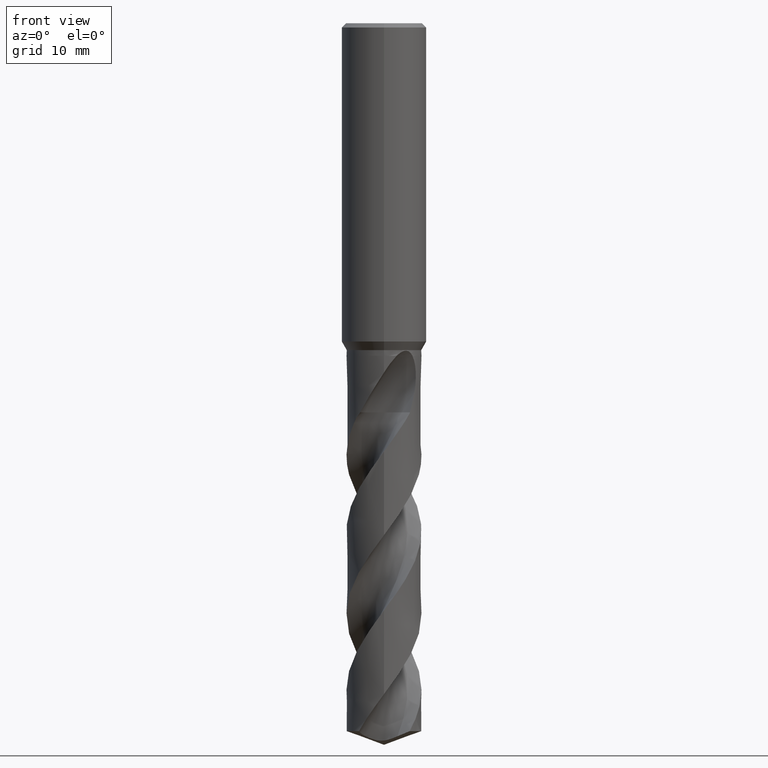
[diagram: clean part render]
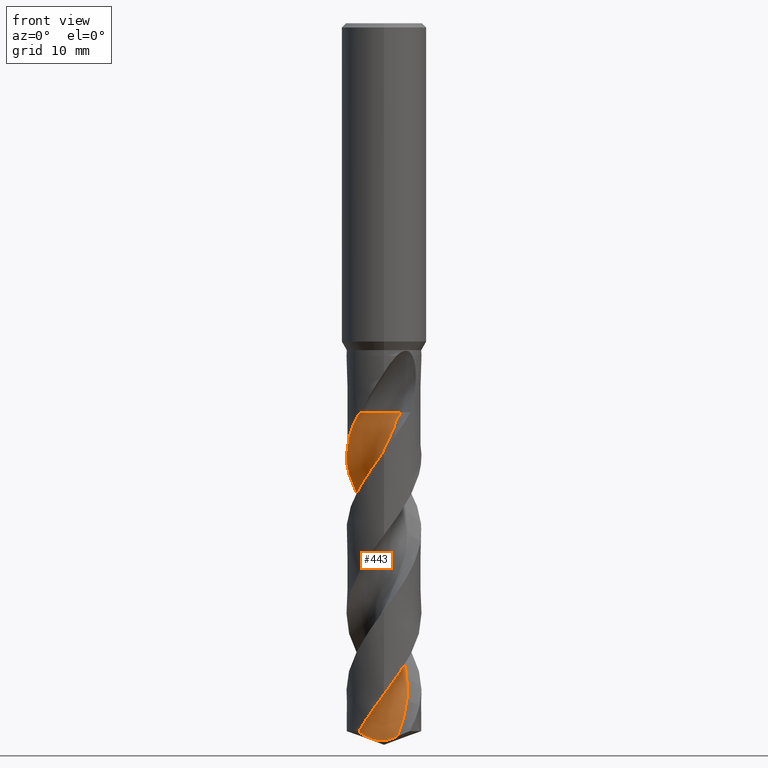
[diagram: same view with one face highlighted and labeled with its STEP entity id]
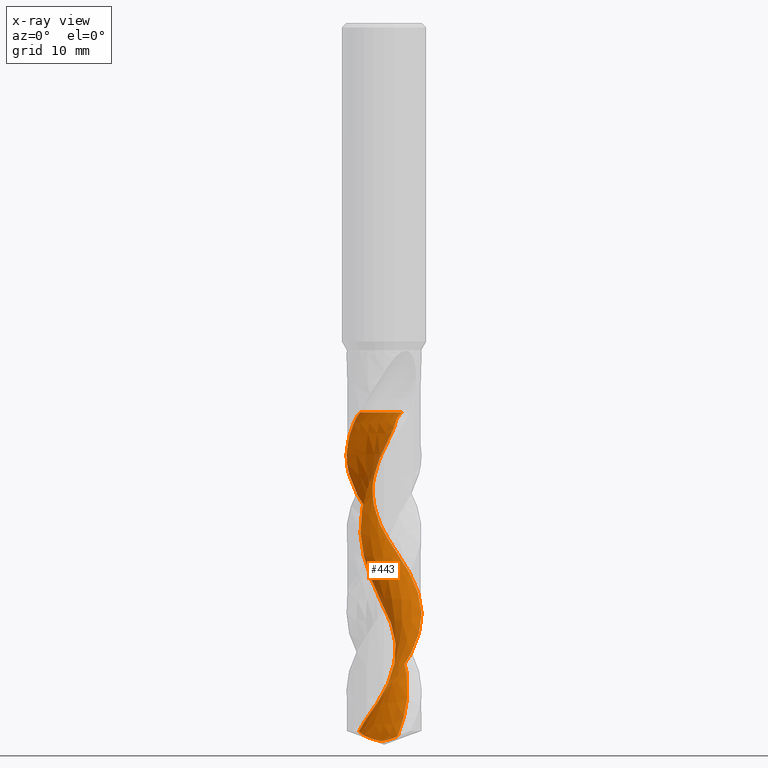
[diagram: x-ray of the same camera — body ghosted, the highlighted face saturated]
A machine part, front view. The second image highlights one B-rep face of the part: STEP entity #443.
The next image is the same camera in x-ray: the body ghosted, the highlighted face saturated — about 0% of this face is hidden behind the body in this view.
In plain terms, the highlighted face is a freeform B-spline surface patch.
Its self-contained STEP definition (entity closure, byte-faithful):
#297=VERTEX_POINT('',#791);
#337=VERTEX_POINT('',#836);
#345=VERTEX_POINT('',#844);
#349=EDGE_CURVE('',#619,#397,#848,.T.);
#367=EDGE_CURVE('',#545,#345,#866,.T.);
#395=EDGE_CURVE('',#519,#297,#898,.T.);
#397=VERTEX_POINT('',#900);
#443=ADVANCED_FACE('',(#952),#953,.F.);
#475=EDGE_CURVE('',#611,#337,#989,.T.);
#513=EDGE_CURVE('',#297,#611,#1027,.T.);
#519=VERTEX_POINT('',#1035);
#525=EDGE_CURVE('',#337,#619,#1041,.T.);
#545=VERTEX_POINT('',#1062);
#569=EDGE_CURVE('',#345,#519,#1090,.T.);
#611=VERTEX_POINT('',#1135);
#619=VERTEX_POINT('',#1145);
#731=EDGE_CURVE('',#397,#545,#1265,.T.);
#791=CARTESIAN_POINT('',(-3.37720920714664,-4.08455115477177,-55.0186));
#836=CARTESIAN_POINT('',(2.49844395776474,-2.62488937223527,-55.0186));
#844=CARTESIAN_POINT('',(-1.78833358994429E-014,-5.29999014877575,-94.842818697139));
#848=B_SPLINE_CURVE_WITH_KNOTS('',3,(#1447,#1448,#1449,#1450,#1451,#1452,#1453,#1454,#1455,#1456,#1457,#1458,#1459,#1460,#1461,#1462,#1463,#1464,#1465,#1466),.UNSPECIFIED.,.F.,.F.,(4,2,2,2,2,2,2,2,2,4),(0.0,2.18032581595831,3.688710649255,5.14270584132123,6.86492140071441,8.86725788890451,11.1894082685425,13.8439045840099,15.8740192568182,17.9100414740258),.UNSPECIFIED.);
#866=B_SPLINE_CURVE_WITH_KNOTS('',3,(#1518,#1519,#1520,#1521,#1522,#1523,#1524,#1525,#1526,#1527,#1528,#1529,#1530,#1531,#1532,#1533,#1534,#1535,#1536,#1537,#1538,#1539,#1540,#1541,#1542,#1543,#1544,#1545,#1546,#1547,#1548,#1549,#1550,#1551,#1552,#1553,#1554,#1555,#1556,#1557,#1558,#1559,#1560,#1561,#1562,#1563,#1564,#1565,#1566,#1567,#1568,#1569,#1570,#1571,#1572,#1573,#1574,#1575,#1576,#1577,#1578,#1579,#1580,#1581,#1582,#1583,#1584,#1585,#1586,#1587,#1588,#1589,#1590,#1591,#1592,#1593),.UNSPECIFIED.,.F.,.F.,(4,2,2,2,2,2,2,2,2,2,2,2,2,2,2,2,2,2,2,2,2,2,2,2,2,2,2,2,2,2,2,2,2,2,2,2,2,4),(0.0,1.22712369502386,1.27264919273712,4.06801338264576,6.27480717391955,8.50503219589305,8.68430701447348,11.3737431397134,13.7454773334356,15.7900768017308,15.9694086211592,18.5948541422571,19.9309085182328,22.8327528270423,24.0644296688243,26.3850272460208,27.3967349662446,30.2967941979505,30.9751549509034,33.8780225034777,34.5064207774791,37.4150326327888,38.4717615157908,41.3827979360504,42.0100558070068,44.9296295110035,45.6552854085725,50.3361230640172,51.6505060207655,52.2191519358006,53.6104211407778,54.4161365268604,54.7813358390883,55.0056645908935,55.2209923010683,55.519386620896,56.1587881911359,56.868888081894),.UNSPECIFIED.);
#898=B_SPLINE_CURVE_WITH_KNOTS('',3,(#1634,#1635,#1636,#1637,#1638,#1639,#1640,#1641,#1642,#1643,#1644,#1645,#1646,#1647,#1648,#1649,#1650,#1651,#1652,#1653,#1654,#1655,#1656,#1657,#1658,#1659,#1660,#1661,#1662,#1663,#1664,#1665,#1666,#1667,#1668,#1669,#1670,#1671,#1672,#1673,#1674,#1675,#1676,#1677,#1678,#1679,#1680,#1681,#1682,#1683,#1684,#1685,#1686,#1687,#1688,#1689,#1690,#1691,#1692,#1693,#1694,#1695,#1696,#1697,#1698,#1699,#1700,#1701,#1702,#1703,#1704,#1705,#1706,#1707,#1708,#1709),.UNSPECIFIED.,.F.,.F.,(4,2,2,2,2,2,2,2,2,2,2,2,2,2,2,2,2,2,2,2,2,2,2,2,2,2,2,2,2,2,2,2,2,2,2,2,2,4),(0.0,1.22712369502386,1.27264919273712,4.06801338264576,6.27480717391955,8.50503219589305,8.68430701447348,11.3737431397134,13.7454773334356,15.7900768017308,15.9694086211592,18.5948541422571,19.9309085182328,22.8327528270423,24.0644296688243,26.3850272460208,27.3967349662446,30.2967941979505,30.9751549509034,33.8780225034777,34.5064207774791,37.4150326327888,38.4717615157908,41.3827979360504,42.0100558070068,44.9296295110035,45.6552854085725,50.3361230640172,51.6505060207655,52.2191519358006,53.6104211407778,54.4161365268604,54.7813358390883,55.0056645908935,55.2209923010683,55.519386620896,56.1587881911359,56.868888081894),.UNSPECIFIED.);
#900=CARTESIAN_POINT('',(2.83247971017826E-010,-1.6562756444202,-101.397164965691));
#952=FACE_OUTER_BOUND('',#1894,.T.);
#953=B_SPLINE_SURFACE_WITH_KNOTS('',3,3,((#1895,#1896,#1897,#1898,#1899,#1900,#1901,#1902,#1903,#1904,#1905,#1906,#1907,#1908,#1909,#1910,#1911,#1912,#1913,#1914,#1915,#1916,#1917,#1918,#1919,#1920,#1921,#1922,#1923,#1924,#1925,#1926,#1927,#1928,#1929,#1930,#1931,#1932,#1933,#1934,#1935,#1936,#1937,#1938,#1939,#1940,#1941,#1942,#1943,#1944,#1945,#1946,#1947,#1948,#1949,#1950),(#1951,#1952,#1953,#1954,#1955,#1956,#1957,#1958,#1959,#1960,#1961,#1962,#1963,#1964,#1965,#1966,#1967,#1968,#1969,#1970,#1971,#1972,#1973,#1974,#1975,#1976,#1977,#1978,#1979,#1980,#1981,#1982,#1983,#1984,#1985,#1986,#1987,#1988,#1989,#1990,#1991,#1992,#1993,#1994,#1995,#1996,#1997,#1998,#1999,#2000,#2001,#2002,#2003,#2004,#2005,#2006),(#2007,#2008,#2009,#2010,#2011,#2012,#2013,#2014,#2015,#2016,#2017,#2018,#2019,#2020,#2021,#2022,#2023,#2024,#2025,#2026,#2027,#2028,#2029,#2030,#2031,#2032,#2033,#2034,#2035,#2036,#2037,#2038,#2039,#2040,#2041,#2042,#2043,#2044,#2045,#2046,#2047,#2048,#2049,#2050,#2051,#2052,#2053,#2054,#2055,#2056,#2057,#2058,#2059,#2060,#2061,#2062),(#2063,#2064,#2065,#2066,#2067,#2068,#2069,#2070,#2071,#2072,#2073,#2074,#2075,#2076,#2077,#2078,#2079,#2080,#2081,#2082,#2083,#2084,#2085,#2086,#2087,#2088,#2089,#2090,#2091,#2092,#2093,#2094,#2095,#2096,#2097,#2098,#2099,#2100,#2101,#2102,#2103,#2104,#2105,#2106,#2107,#2108,#2109,#2110,#2111,#2112,#2113,#2114,#2115,#2116,#2117,#2118),(#2119,#2120,#2121,#2122,#2123,#2124,#2125,#2126,#2127,#2128,#2129,#2130,#2131,#2132,#2133,#2134,#2135,#2136,#2137,#2138,#2139,#2140,#2141,#2142,#2143,#2144,#2145,#2146,#2147,#2148,#2149,#2150,#2151,#2152,#2153,#2154,#2155,#2156,#2157,#2158,#2159,#2160,#2161,#2162,#2163,#2164,#2165,#2166,#2167,#2168,#2169,#2170,#2171,#2172,#2173,#2174),(#2175,#2176,#2177,#2178,#2179,#2180,#2181,#2182,#2183,#2184,#2185,#2186,#2187,#2188,#2189,#2190,#2191,#2192,#2193,#2194,#2195,#2196,#2197,#2198,#2199,#2200,#2201,#2202,#2203,#2204,#2205,#2206,#2207,#2208,#2209,#2210,#2211,#2212,#2213,#2214,#2215,#2216,#2217,#2218,#2219,#2220,#2221,#2222,#2223,#2224,#2225,#2226,#2227,#2228,#2229,#2230),(#2231,#2232,#2233,#2234,#2235,#2236,#2237,#2238,#2239,#2240,#2241,#2242,#2243,#2244,#2245,#2246,#2247,#2248,#2249,#2250,#2251,#2252,#2253,#2254,#2255,#2256,#2257,#2258,#2259,#2260,#2261,#2262,#2263,#2264,#2265,#2266,#2267,#2268,#2269,#2270,#2271,#2272,#2273,#2274,#2275,#2276,#2277,#2278,#2279,#2280,#2281,#2282,#2283,#2284,#2285,#2286),(#2287,#2288,#2289,#2290,#2291,#2292,#2293,#2294,#2295,#2296,#2297,#2298,#2299,#2300,#2301,#2302,#2303,#2304,#2305,#2306,#2307,#2308,#2309,#2310,#2311,#2312,#2313,#2314,#2315,#2316,#2317,#2318,#2319,#2320,#2321,#2322,#2323,#2324,#2325,#2326,#2327,#2328,#2329,#2330,#2331,#2332,#2333,#2334,#2335,#2336,#2337,#2338,#2339,#2340,#2341,#2342),(#2343,#2344,#2345,#2346,#2347,#2348,#2349,#2350,#2351,#2352,#2353,#2354,#2355,#2356,#2357,#2358,#2359,#2360,#2361,#2362,#2363,#2364,#2365,#2366,#2367,#2368,#2369,#2370,#2371,#2372,#2373,#2374,#2375,#2376,#2377,#2378,#2379,#2380,#2381,#2382,#2383,#2384,#2385,#2386,#2387,#2388,#2389,#2390,#2391,#2392,#2393,#2394,#2395,#2396,#2397,#2398),(#2399,#2400,#2401,#2402,#2403,#2404,#2405,#2406,#2407,#2408,#2409,#2410,#2411,#2412,#2413,#2414,#2415,#2416,#2417,#2418,#2419,#2420,#2421,#2422,#2423,#2424,#2425,#2426,#2427,#2428,#2429,#2430,#2431,#2432,#2433,#2434,#2435,#2436,#2437,#2438,#2439,#2440,#2441,#2442,#2443,#2444,#2445,#2446,#2447,#2448,#2449,#2450,#2451,#2452,#2453,#2454),(#2455,#2456,#2457,#2458,#2459,#2460,#2461,#2462,#2463,#2464,#2465,#2466,#2467,#2468,#2469,#2470,#2471,#2472,#2473,#2474,#2475,#2476,#2477,#2478,#2479,#2480,#2481,#2482,#2483,#2484,#2485,#2486,#2487,#2488,#2489,#2490,#2491,#2492,#2493,#2494,#2495,#2496,#2497,#2498,#2499,#2500,#2501,#2502,#2503,#2504,#2505,#2506,#2507,#2508,#2509,#2510)),.UNSPECIFIED.,.F.,.F.,.F.,(4,1,1,1,1,1,1,1,4),(4,1,2,1,2,2,2,2,2,1,2,1,2,1,2,1,2,1,2,1,2,1,2,1,2,1,2,1,2,1,2,1,2,2,4),(-8.97708979202191E-017,0.392700962585788,0.785401925171577,1.17810288775736,1.57080385034315,1.96350481292894,2.35620577551473,2.74890673810052,3.14160770068631),(0.0,1.05697191436646,2.11394382873293,3.17091574309939,4.22788765746586,6.34183148619878,8.45577531493171,10.5697191436646,12.6836629723976,14.7976068011305,16.9115506298634,19.0254944585963,21.1394382873293,23.2533821160622,25.3673259447951,27.4812697735281,29.595213602261,31.7091574309939,33.8231012597268,35.9370450884598,38.0509889171927,40.1649327459256,42.2788765746586,44.3928204033915,46.5067642321244,48.6207080608573,50.7346518895903,52.8485957183232,54.9625395470561,57.076483375789,59.190427204522,61.3043710332549,63.4183148619878,65.5322586907208,67.6462025194537),.UNSPECIFIED.);
#989=CIRCLE('',#2670,3.53333333);
#1027=CIRCLE('',#2913,3.53333333);
#1035=CARTESIAN_POINT('',(-1.27592137398324E-014,5.29994780539985,-72.3707835649115));
#1041=B_SPLINE_CURVE_WITH_KNOTS('',3,(#3154,#3155,#3156,#3157,#3158,#3159,#3160,#3161,#3162,#3163,#3164,#3165,#3166,#3167,#3168,#3169,#3170,#3171,#3172,#3173,#3174,#3175,#3176,#3177,#3178,#3179,#3180,#3181,#3182,#3183,#3184,#3185,#3186,#3187,#3188,#3189,#3190,#3191,#3192,#3193,#3194,#3195,#3196,#3197,#3198,#3199,#3200,#3201,#3202,#3203,#3204,#3205,#3206,#3207,#3208,#3209),.UNSPECIFIED.,.F.,.F.,(4,1,2,1,2,2,2,2,2,1,2,1,2,1,2,1,2,1,2,1,2,1,2,1,2,1,2,1,2,1,2,1,2,2,4),(0.0,1.05697191436646,2.11394382873293,3.17091574309939,4.22788765746586,6.34183148619878,8.45577531493171,10.5697191436646,12.6836629723976,14.7976068011305,16.9115506298634,19.0254944585963,21.1394382873293,23.2533821160622,25.3673259447951,27.4812697735281,29.595213602261,31.7091574309939,33.8231012597268,35.9370450884598,38.0509889171927,40.1649327459256,42.2788765746586,44.3928204033915,46.5067642321244,48.6207080608573,50.7346518895903,52.8485957183232,54.9625395470561,57.076483375789,59.190427204522,61.3043710332549,63.4183148619878,65.5322586907208,67.6462025194537),.UNSPECIFIED.);
#1062=CARTESIAN_POINT('',(-3.53708410457799,-3.9470287606175,-100.070957758389));
#1090=B_SPLINE_CURVE_WITH_KNOTS('',3,(#4219,#4220,#4221,#4222,#4223,#4224,#4225,#4226,#4227,#4228,#4229,#4230,#4231,#4232,#4233,#4234,#4235,#4236,#4237,#4238,#4239,#4240,#4241,#4242,#4243,#4244,#4245,#4246,#4247,#4248,#4249,#4250,#4251,#4252,#4253,#4254,#4255,#4256,#4257,#4258,#4259,#4260,#4261,#4262,#4263,#4264,#4265,#4266,#4267,#4268,#4269,#4270,#4271,#4272,#4273,#4274,#4275,#4276,#4277,#4278,#4279,#4280,#4281,#4282,#4283,#4284,#4285,#4286,#4287,#4288,#4289,#4290,#4291,#4292,#4293,#4294),.UNSPECIFIED.,.F.,.F.,(4,2,2,2,2,2,2,2,2,2,2,2,2,2,2,2,2,2,2,2,2,2,2,2,2,2,2,2,2,2,2,2,2,2,2,2,2,4),(0.0,1.22712369502386,1.27264919273712,4.06801338264576,6.27480717391955,8.50503219589305,8.68430701447348,11.3737431397134,13.7454773334356,15.7900768017308,15.9694086211592,18.5948541422571,19.9309085182328,22.8327528270423,24.0644296688243,26.3850272460208,27.3967349662446,30.2967941979505,30.9751549509034,33.8780225034777,34.5064207774791,37.4150326327888,38.4717615157908,41.3827979360504,42.0100558070068,44.9296295110035,45.6552854085725,50.3361230640172,51.6505060207655,52.2191519358006,53.6104211407778,54.4161365268604,54.7813358390883,55.0056645908935,55.2209923010683,55.519386620896,56.1587881911359,56.868888081894),.UNSPECIFIED.);
#1135=CARTESIAN_POINT('',(0.417518740502082,-1.61473835074636,-55.0186));
#1145=CARTESIAN_POINT('',(1.92643973439241,-2.73193693311974,-100.783301920864));
#1265=B_SPLINE_CURVE_WITH_KNOTS('',3,(#5179,#5180,#5181,#5182,#5183,#5184,#5185,#5186,#5187,#5188,#5189,#5190,#5191,#5192,#5193,#5194,#5195,#5196,#5197,#5198),.UNSPECIFIED.,.F.,.F.,(4,2,2,2,2,2,2,2,2,4),(0.0,2.18032581595831,3.688710649255,5.14270584132123,6.86492140071441,8.86725788890451,11.1894082685425,13.8439045840099,15.8740192568182,17.9100414740258),.UNSPECIFIED.);
#1447=CARTESIAN_POINT('',(1.92643973439224,-2.7319369331198,-100.783301920864));
#1448=CARTESIAN_POINT('',(1.3939480884911,-2.29960005207001,-101.023592920072));
#1449=CARTESIAN_POINT('',(0.816014588181802,-1.97834014573043,-101.239162471834));
#1450=CARTESIAN_POINT('',(-0.0328599703575978,-1.63133935196305,-101.417438649536));
#1451=CARTESIAN_POINT('',(-0.340682471854844,-1.54315137852764,-101.434629750413));
#1452=CARTESIAN_POINT('',(-0.925748735029056,-1.45996533882137,-101.379114916331));
#1453=CARTESIAN_POINT('',(-1.19420181013323,-1.46616890965735,-101.313882805865));
#1454=CARTESIAN_POINT('',(-1.74087316586668,-1.56733270857644,-101.149833294786));
#1455=CARTESIAN_POINT('',(-2.01871187207415,-1.67925729861072,-101.044347856184));
#1456=CARTESIAN_POINT('',(-2.56085388359707,-2.0238647205053,-100.812071252993));
#1457=CARTESIAN_POINT('',(-2.8095315390035,-2.26900421513461,-100.685970273512));
#1458=CARTESIAN_POINT('',(-3.23897297525884,-2.88407229697594,-100.421933951052));
#1459=CARTESIAN_POINT('',(-3.39819751239765,-3.26153843377359,-100.287368380929));
#1460=CARTESIAN_POINT('',(-3.58693701789865,-4.11460735710158,-100.015175524288));
#1461=CARTESIAN_POINT('',(-3.59354960670601,-4.59035352024508,-99.8816022011797));
#1462=CARTESIAN_POINT('',(-3.45468786435044,-5.41443249182218,-99.664149627161));
#1463=CARTESIAN_POINT('',(-3.3450847982693,-5.76395126044771,-99.5766926140396));
#1464=CARTESIAN_POINT('',(-3.03779284879525,-6.42850910387212,-99.4142885623315));
#1465=CARTESIAN_POINT('',(-2.84053525191085,-6.74199511842239,-99.3397440305304));
#1466=CARTESIAN_POINT('',(-2.6062393856609,-7.02762522226605,-99.2719222995233));
#1518=CARTESIAN_POINT('',(-3.53708410457796,-3.94702876061749,-100.070957758389));
#1519=CARTESIAN_POINT('',(-3.3561102262152,-4.10920557295032,-99.7419260485163));
#1520=CARTESIAN_POINT('',(-3.16422836706565,-4.25871443538677,-99.4140594407855));
#1521=CARTESIAN_POINT('',(-2.95535071582145,-4.39954127369099,-99.0727744281991));
#1522=CARTESIAN_POINT('',(-2.94787020238405,-4.40455701755965,-99.0605716783885));
#1523=CARTESIAN_POINT('',(-2.4793620121497,-4.71696350761782,-98.2978181884481));
#1524=CARTESIAN_POINT('',(-1.97270796070142,-4.95042972649729,-97.5611281701058));
#1525=CARTESIAN_POINT('',(-1.01627685847536,-5.220085843763,-96.2215006436758));
#1526=CARTESIAN_POINT('',(-0.581469570178012,-5.28622839656477,-95.6263667851493));
#1527=CARTESIAN_POINT('',(0.300149699754116,-5.31001991430798,-94.4381621477799));
#1528=CARTESIAN_POINT('',(0.742009052049989,-5.26630179071861,-93.8476166882273));
#1529=CARTESIAN_POINT('',(1.20684330959287,-5.16087683158301,-93.2008056556458));
#1530=CARTESIAN_POINT('',(1.24131314139111,-5.15269501901785,-93.1526808222923));
#1531=CARTESIAN_POINT('',(1.79315319854555,-5.01583159207276,-92.3813105458631));
#1532=CARTESIAN_POINT('',(2.28884257739128,-4.8100956301805,-91.6704854245234));
#1533=CARTESIAN_POINT('',(3.14958610735426,-4.2886272996436,-90.3137385470915));
#1534=CARTESIAN_POINT('',(3.51858539037922,-3.99152934732724,-89.6745333691675));
#1535=CARTESIAN_POINT('',(4.12394826519767,-3.35388032018444,-88.4911234293317));
#1536=CARTESIAN_POINT('',(4.36853251846656,-3.02813861543038,-87.9482639200775));
#1537=CARTESIAN_POINT('',(4.59112834490844,-2.6481215354548,-87.3506547699084));
#1538=CARTESIAN_POINT('',(4.6087336185526,-2.61736088527403,-87.3024920673983));
#1539=CARTESIAN_POINT('',(4.87950548594394,-2.13305335192166,-86.5493242462027));
#1540=CARTESIAN_POINT('',(5.06538889253997,-1.64422127334164,-85.8558002537175));
#1541=CARTESIAN_POINT('',(5.23386410566475,-0.875658236205856,-84.7956296782613));
#1542=CARTESIAN_POINT('',(5.27100703524842,-0.61304012537926,-84.4363584431835));
#1543=CARTESIAN_POINT('',(5.32623919621527,0.222228122967706,-83.3026959413829));
#1544=CARTESIAN_POINT('',(5.27105914072677,0.796292078105526,-82.5417956258234));
#1545=CARTESIAN_POINT('',(5.06302137776647,1.58575608341867,-81.4373663533248));
#1546=CARTESIAN_POINT('',(4.98483091897969,1.8167516982691,-81.1063406600368));
#1547=CARTESIAN_POINT('',(4.71378616799121,2.46597920921992,-80.1565100700444));
#1548=CARTESIAN_POINT('',(4.48243316823513,2.86499483386936,-79.5439447451353));
#1549=CARTESIAN_POINT('',(4.08073422491538,3.38780891482122,-78.6529466596777));
#1550=CARTESIAN_POINT('',(3.95013448511224,3.53920289735938,-78.3812504570272));
#1551=CARTESIAN_POINT('',(3.41308441125072,4.09495856380747,-77.3355074216226));
#1552=CARTESIAN_POINT('',(2.9511551972848,4.43933217737678,-76.5754993140775));
#1553=CARTESIAN_POINT('',(2.32457356620526,4.76484902073512,-75.6192523001083));
#1554=CARTESIAN_POINT('',(2.20367724735013,4.8219552755014,-75.4374957784736));
#1555=CARTESIAN_POINT('',(1.55336683912372,5.09951180869798,-74.480042096855));
#1556=CARTESIAN_POINT('',(0.993493574013739,5.23743973783755,-73.7193131053995));
#1557=CARTESIAN_POINT('',(0.298667722776509,5.29298011338455,-72.7762437751152));
#1558=CARTESIAN_POINT('',(0.174981200853959,5.29850184184334,-72.6079899607949));
#1559=CARTESIAN_POINT('',(-0.520950130641845,5.30524171948738,-71.6644771581823));
#1560=CARTESIAN_POINT('',(-1.09050245285531,5.21810453001163,-70.903852785547));
#1561=CARTESIAN_POINT('',(-1.8336222214681,4.97700431587721,-69.8482585818478));
#1562=CARTESIAN_POINT('',(-2.02732607191976,4.90128214558722,-69.5656773856694));
#1563=CARTESIAN_POINT('',(-2.73645491131192,4.57484656798243,-68.5096051260809));
#1564=CARTESIAN_POINT('',(-3.21387897919325,4.2529107228855,-67.7501651838022));
#1565=CARTESIAN_POINT('',(-3.72019209605914,3.77686178400533,-66.8085236097558));
#1566=CARTESIAN_POINT('',(-3.80684236692231,3.68950868500038,-66.6411899200701));
#1567=CARTESIAN_POINT('',(-4.28010184771392,3.17791473313338,-65.6968620056063));
#1568=CARTESIAN_POINT('',(-4.59884502361838,2.69626767099278,-64.9347311417096));
#1569=CARTESIAN_POINT('',(-4.89279562635383,2.04210972577218,-63.9661460048593));
#1570=CARTESIAN_POINT('',(-4.94592656715009,1.90980827241866,-63.7728103058132));
#1571=CARTESIAN_POINT('',(-5.30141070358016,0.910061116146048,-62.3368793025154));
#1572=CARTESIAN_POINT('',(-5.37861939851269,-0.0203894591216869,-61.1249800932775));
#1573=CARTESIAN_POINT('',(-5.17402866861081,-1.17682170300705,-59.5356235670649));
#1574=CARTESIAN_POINT('',(-5.11089742145579,-1.42647056289969,-59.1837314302958));
#1575=CARTESIAN_POINT('',(-4.99399509676779,-1.7781196597585,-58.684860700428));
#1576=CARTESIAN_POINT('',(-4.95519283454198,-1.8836066047532,-58.5345420064395));
#1577=CARTESIAN_POINT('',(-4.80925374349898,-2.24421419232193,-58.0177691916402));
#1578=CARTESIAN_POINT('',(-4.68899544689731,-2.48526257500793,-57.6724268846324));
#1579=CARTESIAN_POINT('',(-4.468544236278,-2.85413570287888,-57.0807412807445));
#1580=CARTESIAN_POINT('',(-4.38398460799645,-2.98192281707983,-56.8624912695507));
#1581=CARTESIAN_POINT('',(-4.25767293023758,-3.15687841619603,-56.5377904550775));
#1582=CARTESIAN_POINT('',(-4.23443190483364,-3.18782299291827,-56.4761490481022));
#1583=CARTESIAN_POINT('',(-4.17614710448614,-3.26347090008732,-56.3342045201303));
#1584=CARTESIAN_POINT('',(-4.15327007709663,-3.29255178309808,-56.2807192776076));
#1585=CARTESIAN_POINT('',(-4.10691032851677,-3.35018254091572,-56.1767714712347));
#1586=CARTESIAN_POINT('',(-4.08352775083234,-3.37865809103766,-56.1263615710841));
#1587=CARTESIAN_POINT('',(-4.02599112162733,-3.44720430546316,-56.0071554332025));
#1588=CARTESIAN_POINT('',(-3.99123660675427,-3.48742140648931,-55.938923726174));
#1589=CARTESIAN_POINT('',(-3.87743054018574,-3.61500126218163,-55.7272551963958));
#1590=CARTESIAN_POINT('',(-3.79367730879032,-3.70313338050149,-55.587978161929));
#1591=CARTESIAN_POINT('',(-3.60224604123134,-3.89008392430712,-55.3023300406804));
#1592=CARTESIAN_POINT('',(-3.49384778100374,-3.98811180164878,-55.1582263921692));
#1593=CARTESIAN_POINT('',(-3.37720920714663,-4.08455115477177,-55.0186));
#1634=CARTESIAN_POINT('',(-3.53708410457796,-3.94702876061749,-100.070957758389));
#1635=CARTESIAN_POINT('',(-3.3561102262152,-4.10920557295032,-99.7419260485163));
#1636=CARTESIAN_POINT('',(-3.16422836706565,-4.25871443538677,-99.4140594407855));
#1637=CARTESIAN_POINT('',(-2.95535071582145,-4.39954127369099,-99.0727744281991));
#1638=CARTESIAN_POINT('',(-2.94787020238405,-4.40455701755965,-99.0605716783885));
#1639=CARTESIAN_POINT('',(-2.4793620121497,-4.71696350761782,-98.2978181884481));
#1640=CARTESIAN_POINT('',(-1.97270796070142,-4.95042972649729,-97.5611281701058));
#1641=CARTESIAN_POINT('',(-1.01627685847536,-5.220085843763,-96.2215006436758));
#1642=CARTESIAN_POINT('',(-0.581469570178012,-5.28622839656477,-95.6263667851493));
#1643=CARTESIAN_POINT('',(0.300149699754116,-5.31001991430798,-94.4381621477799));
#1644=CARTESIAN_POINT('',(0.742009052049989,-5.26630179071861,-93.8476166882273));
#1645=CARTESIAN_POINT('',(1.20684330959287,-5.16087683158301,-93.2008056556458));
#1646=CARTESIAN_POINT('',(1.24131314139111,-5.15269501901785,-93.1526808222923));
#1647=CARTESIAN_POINT('',(1.79315319854555,-5.01583159207276,-92.3813105458631));
#1648=CARTESIAN_POINT('',(2.28884257739128,-4.8100956301805,-91.6704854245234));
#1649=CARTESIAN_POINT('',(3.14958610735426,-4.2886272996436,-90.3137385470915));
#1650=CARTESIAN_POINT('',(3.51858539037922,-3.99152934732724,-89.6745333691675));
#1651=CARTESIAN_POINT('',(4.12394826519767,-3.35388032018444,-88.4911234293317));
#1652=CARTESIAN_POINT('',(4.36853251846656,-3.02813861543038,-87.9482639200775));
#1653=CARTESIAN_POINT('',(4.59112834490844,-2.6481215354548,-87.3506547699084));
#1654=CARTESIAN_POINT('',(4.6087336185526,-2.61736088527403,-87.3024920673983));
#1655=CARTESIAN_POINT('',(4.87950548594394,-2.13305335192166,-86.5493242462027));
#1656=CARTESIAN_POINT('',(5.06538889253997,-1.64422127334164,-85.8558002537175));
#1657=CARTESIAN_POINT('',(5.23386410566475,-0.875658236205856,-84.7956296782613));
#1658=CARTESIAN_POINT('',(5.27100703524842,-0.61304012537926,-84.4363584431835));
#1659=CARTESIAN_POINT('',(5.32623919621527,0.222228122967706,-83.3026959413829));
#1660=CARTESIAN_POINT('',(5.27105914072677,0.796292078105526,-82.5417956258234));
#1661=CARTESIAN_POINT('',(5.06302137776647,1.58575608341867,-81.4373663533248));
#1662=CARTESIAN_POINT('',(4.98483091897969,1.8167516982691,-81.1063406600368));
#1663=CARTESIAN_POINT('',(4.71378616799121,2.46597920921992,-80.1565100700444));
#1664=CARTESIAN_POINT('',(4.48243316823513,2.86499483386936,-79.5439447451353));
#1665=CARTESIAN_POINT('',(4.08073422491538,3.38780891482122,-78.6529466596777));
#1666=CARTESIAN_POINT('',(3.95013448511224,3.53920289735938,-78.3812504570272));
#1667=CARTESIAN_POINT('',(3.41308441125072,4.09495856380747,-77.3355074216226));
#1668=CARTESIAN_POINT('',(2.9511551972848,4.43933217737678,-76.5754993140775));
#1669=CARTESIAN_POINT('',(2.32457356620526,4.76484902073512,-75.6192523001083));
#1670=CARTESIAN_POINT('',(2.20367724735013,4.8219552755014,-75.4374957784736));
#1671=CARTESIAN_POINT('',(1.55336683912372,5.09951180869798,-74.480042096855));
#1672=CARTESIAN_POINT('',(0.993493574013739,5.23743973783755,-73.7193131053995));
#1673=CARTESIAN_POINT('',(0.298667722776509,5.29298011338455,-72.7762437751152));
#1674=CARTESIAN_POINT('',(0.174981200853959,5.29850184184334,-72.6079899607949));
#1675=CARTESIAN_POINT('',(-0.520950130641845,5.30524171948738,-71.6644771581823));
#1676=CARTESIAN_POINT('',(-1.09050245285531,5.21810453001163,-70.903852785547));
#1677=CARTESIAN_POINT('',(-1.8336222214681,4.97700431587721,-69.8482585818478));
#1678=CARTESIAN_POINT('',(-2.02732607191976,4.90128214558722,-69.5656773856694));
#1679=CARTESIAN_POINT('',(-2.73645491131192,4.57484656798243,-68.5096051260809));
#1680=CARTESIAN_POINT('',(-3.21387897919325,4.2529107228855,-67.7501651838022));
#1681=CARTESIAN_POINT('',(-3.72019209605914,3.77686178400533,-66.8085236097558));
#1682=CARTESIAN_POINT('',(-3.80684236692231,3.68950868500038,-66.6411899200701));
#1683=CARTESIAN_POINT('',(-4.28010184771392,3.17791473313338,-65.6968620056063));
#1684=CARTESIAN_POINT('',(-4.59884502361838,2.69626767099278,-64.9347311417096));
#1685=CARTESIAN_POINT('',(-4.89279562635383,2.04210972577218,-63.9661460048593));
#1686=CARTESIAN_POINT('',(-4.94592656715009,1.90980827241866,-63.7728103058132));
#1687=CARTESIAN_POINT('',(-5.30141070358016,0.910061116146048,-62.3368793025154));
#1688=CARTESIAN_POINT('',(-5.37861939851269,-0.0203894591216869,-61.1249800932775));
#1689=CARTESIAN_POINT('',(-5.17402866861081,-1.17682170300705,-59.5356235670649));
#1690=CARTESIAN_POINT('',(-5.11089742145579,-1.42647056289969,-59.1837314302958));
#1691=CARTESIAN_POINT('',(-4.99399509676779,-1.7781196597585,-58.684860700428));
#1692=CARTESIAN_POINT('',(-4.95519283454198,-1.8836066047532,-58.5345420064395));
#1693=CARTESIAN_POINT('',(-4.80925374349898,-2.24421419232193,-58.0177691916402));
#1694=CARTESIAN_POINT('',(-4.68899544689731,-2.48526257500793,-57.6724268846324));
#1695=CARTESIAN_POINT('',(-4.468544236278,-2.85413570287888,-57.0807412807445));
#1696=CARTESIAN_POINT('',(-4.38398460799645,-2.98192281707983,-56.8624912695507));
#1697=CARTESIAN_POINT('',(-4.25767293023758,-3.15687841619603,-56.5377904550775));
#1698=CARTESIAN_POINT('',(-4.23443190483364,-3.18782299291827,-56.4761490481022));
#1699=CARTESIAN_POINT('',(-4.17614710448614,-3.26347090008732,-56.3342045201303));
#1700=CARTESIAN_POINT('',(-4.15327007709663,-3.29255178309808,-56.2807192776076));
#1701=CARTESIAN_POINT('',(-4.10691032851677,-3.35018254091572,-56.1767714712347));
#1702=CARTESIAN_POINT('',(-4.08352775083234,-3.37865809103766,-56.1263615710841));
#1703=CARTESIAN_POINT('',(-4.02599112162733,-3.44720430546316,-56.0071554332025));
#1704=CARTESIAN_POINT('',(-3.99123660675427,-3.48742140648931,-55.938923726174));
#1705=CARTESIAN_POINT('',(-3.87743054018574,-3.61500126218163,-55.7272551963958));
#1706=CARTESIAN_POINT('',(-3.79367730879032,-3.70313338050149,-55.587978161929));
#1707=CARTESIAN_POINT('',(-3.60224604123134,-3.89008392430712,-55.3023300406804));
#1708=CARTESIAN_POINT('',(-3.49384778100374,-3.98811180164878,-55.1582263921692));
#1709=CARTESIAN_POINT('',(-3.37720920714663,-4.08455115477177,-55.0186));
#1894=EDGE_LOOP('',(#5465,#5466,#5467,#5468,#5469,#5470,#5471,#5472));
#1895=CARTESIAN_POINT('',(-2.49844395776474,-7.62177728776473,-55.0186));
#1896=CARTESIAN_POINT('',(-2.7520544174962,-7.60523541135371,-55.2628642189732));
#1897=CARTESIAN_POINT('',(-3.2651398392561,-7.51867187594988,-55.7553569845281));
#1898=CARTESIAN_POINT('',(-3.77272284817975,-7.28991862336742,-56.2494384023743));
#1899=CARTESIAN_POINT('',(-4.25838850816794,-6.97486376007857,-56.7359186895146));
#1900=CARTESIAN_POINT('',(-4.72518728609565,-6.64510782382381,-57.2209555892619));
#1901=CARTESIAN_POINT('',(-5.16120847482811,-6.29516131810648,-57.7091112604978));
#1902=CARTESIAN_POINT('',(-5.7944137162324,-5.75946900235478,-58.4471037495321));
#1903=CARTESIAN_POINT('',(-6.17908358993438,-5.35472627496035,-58.9385777472621));
#1904=CARTESIAN_POINT('',(-6.84614523165785,-4.45660560969981,-59.9149745603799));
#1905=CARTESIAN_POINT('',(-7.13550858054728,-3.97628782682166,-60.4036852844237));
#1906=CARTESIAN_POINT('',(-7.6111758432962,-2.96744177484619,-61.3837170314219));
#1907=CARTESIAN_POINT('',(-7.7979139890868,-2.43961971698672,-61.8734102129035));
#1908=CARTESIAN_POINT('',(-8.05672322648908,-1.3542124790075,-62.8518402534257));
#1909=CARTESIAN_POINT('',(-8.13146664773552,-0.798725301311067,-63.3413120475733));
#1910=CARTESIAN_POINT('',(-8.16077739365207,0.317885133785408,-64.320397329576));
#1911=CARTESIAN_POINT('',(-8.08061812892007,1.43460745433992,-65.2989814846611));
#1912=CARTESIAN_POINT('',(-7.77637486293533,2.51297597934101,-66.2785287157813));
#1913=CARTESIAN_POINT('',(-7.3565243213419,3.54856305581834,-67.2573348559375));
#1914=CARTESIAN_POINT('',(-6.8363814300583,4.54037789517736,-68.2355950173732));
#1915=CARTESIAN_POINT('',(-6.12681408945226,5.40771006645461,-69.2150563625483));
#1916=CARTESIAN_POINT('',(-5.32871324756504,6.18980789076774,-70.1940183461087));
#1917=CARTESIAN_POINT('',(-4.45607563871368,6.89169720532081,-71.1724114591086));
#1918=CARTESIAN_POINT('',(-3.45934423024217,7.40371395236458,-72.1518914943324));
#1919=CARTESIAN_POINT('',(-2.4154154617199,7.80223096952889,-73.1307968800447));
#1920=CARTESIAN_POINT('',(-1.33515449497822,8.09748806416741,-74.1091478835758));
#1921=CARTESIAN_POINT('',(-0.216881677719133,8.16915601636551,-75.0886247219537));
#1922=CARTESIAN_POINT('',(0.899362873671713,8.11790522694004,-76.0675464412302));
#1923=CARTESIAN_POINT('',(2.0076996481192,7.95746532690946,-77.0459083512101));
#1924=CARTESIAN_POINT('',(3.06164026967095,7.57684429109525,-78.0253852830657));
#1925=CARTESIAN_POINT('',(4.06466443848071,7.08433682122949,-79.0043029479156));
#1926=CARTESIAN_POINT('',(5.01686155674177,6.49487110573098,-79.9826624308774));
#1927=CARTESIAN_POINT('',(5.83130561312391,5.72522902279765,-80.962139146411));
#1928=CARTESIAN_POINT('',(6.55440568878066,4.87331724948416,-81.9410569155029));
#1929=CARTESIAN_POINT('',(7.19220355272006,3.95279154881483,-82.9194165474105));
#1930=CARTESIAN_POINT('',(7.63178343007959,2.92204499527594,-83.8988948350172));
#1931=CARTESIAN_POINT('',(7.95477464795671,1.85232418872174,-84.877815460052));
#1932=CARTESIAN_POINT('',(8.17216495629688,0.753736831624031,-85.85617590921));
#1933=CARTESIAN_POINT('',(8.16381701624104,-0.366800241673173,-86.8356480126302));
#1934=CARTESIAN_POINT('',(8.03301607275596,-1.47654212125401,-87.81455794504));
#1935=CARTESIAN_POINT('',(7.79387228588473,-2.57060697314275,-88.7929168553091));
#1936=CARTESIAN_POINT('',(7.338975482665,-3.59469088653532,-89.7724130184318));
#1937=CARTESIAN_POINT('',(6.77609427913497,-4.55998316819943,-90.7513615912121));
#1938=CARTESIAN_POINT('',(6.12014322919887,-5.46763895976183,-91.7297245859576));
#1939=CARTESIAN_POINT('',(5.29439041672592,-6.22509104742079,-92.7091432926492));
#1940=CARTESIAN_POINT('',(4.39314650955669,-6.88564736236216,-93.687973306122));
#1941=CARTESIAN_POINT('',(3.42944215469773,-7.45622960785335,-94.6663283939643));
#1942=CARTESIAN_POINT('',(2.36968341529188,-7.82084124670152,-95.645969390375));
#1943=CARTESIAN_POINT('',(1.27929817163099,-8.06601014476892,-96.6251273796095));
#1944=CARTESIAN_POINT('',(0.168075032742699,-8.20402858705474,-97.6035282946377));
#1945=CARTESIAN_POINT('',(-0.948511000846295,-8.11707695666868,-98.5827445309089));
#1946=CARTESIAN_POINT('',(-2.04572853098473,-7.90999541245635,-99.5613080554323));
#1947=CARTESIAN_POINT('',(-2.58334315280676,-7.7512920271887,-100.050666807518));
#1948=CARTESIAN_POINT('',(-3.6141360759917,-7.32230696511344,-101.029300070701));
#1949=CARTESIAN_POINT('',(-4.10681505227596,-7.06048116715744,-101.517779758929));
#1950=CARTESIAN_POINT('',(-4.57006866504496,-6.75597426957738,-102.006988123894));
#1951=CARTESIAN_POINT('',(-2.82547718126947,-7.2947162806582,-55.0186));
#1952=CARTESIAN_POINT('',(-3.07880877044162,-7.27789555826517,-55.2628561156289));
#1953=CARTESIAN_POINT('',(-3.58453038270768,-7.18374230601948,-55.7557856293561));
#1954=CARTESIAN_POINT('',(-4.06938707962379,-6.93450435927662,-56.2504528126568));
#1955=CARTESIAN_POINT('',(-4.52285016996676,-6.59487762442746,-56.736488758393));
#1956=CARTESIAN_POINT('',(-4.95839655962398,-6.24458925227685,-57.220906975982));
#1957=CARTESIAN_POINT('',(-5.36621761072601,-5.88030704075961,-57.7088966265744));
#1958=CARTESIAN_POINT('',(-5.95956528563171,-5.32645972318388,-58.447429908623));
#1959=CARTESIAN_POINT('',(-6.31508416382047,-4.91146526594289,-58.9391779388223));
#1960=CARTESIAN_POINT('',(-6.91879765448982,-3.99867754944022,-59.9152199211039));
#1961=CARTESIAN_POINT('',(-7.17662968185338,-3.51452478327325,-60.4038281970758));
#1962=CARTESIAN_POINT('',(-7.58918211415716,-2.50437376618251,-61.3840157969976));
#1963=CARTESIAN_POINT('',(-7.74448527924711,-1.97910548401542,-61.8737410528774));
#1964=CARTESIAN_POINT('',(-7.94085918332325,-0.905321335825771,-62.8521028667834));
#1965=CARTESIAN_POINT('',(-7.98521392049439,-0.358779463044283,-63.3415764760794));
#1966=CARTESIAN_POINT('',(-7.95537323873174,0.733518432088685,-64.3206850573733));
#1967=CARTESIAN_POINT('',(-7.81974118819794,1.82034889810178,-65.2992227028331));
#1968=CARTESIAN_POINT('',(-7.46697357340455,2.8582623721645,-66.2788572588618));
#1969=CARTESIAN_POINT('',(-7.00235591798442,3.84775581539782,-67.2576477023086));
#1970=CARTESIAN_POINT('',(-6.44317149039439,4.78987042702682,-68.2358163599714));
#1971=CARTESIAN_POINT('',(-5.70528216024763,5.600740315487,-69.2153531274443));
#1972=CARTESIAN_POINT('',(-4.88455996776741,6.32276427647178,-70.1943211406384));
#1973=CARTESIAN_POINT('',(-3.99596776408941,6.9635336627966,-71.1726412129594));
#1974=CARTESIAN_POINT('',(-2.99579979018023,7.41247090008708,-72.1521992476761));
#1975=CARTESIAN_POINT('',(-1.95510598568559,7.74686831716409,-73.1311027982824));
#1976=CARTESIAN_POINT('',(-0.884611544842961,7.97971424913873,-74.109374886723));
#1977=CARTESIAN_POINT('',(0.211636568395641,7.99217507489868,-75.0889293227733));
#1978=CARTESIAN_POINT('',(1.29932352106909,7.88342428926722,-76.0678514352867));
#1979=CARTESIAN_POINT('',(2.37379524200656,7.669656771337,-77.0461359780176));
#1980=CARTESIAN_POINT('',(3.38390997219001,7.24353910318698,-78.0256905224534));
#1981=CARTESIAN_POINT('',(4.33780062204067,6.70970840705339,-79.0046079906847));
#1982=CARTESIAN_POINT('',(5.23766322765593,6.08486339094254,-79.982889782788));
#1983=CARTESIAN_POINT('',(5.99376472492966,5.29099732687748,-80.96244405481));
#1984=CARTESIAN_POINT('',(6.65532083718791,4.42080650595343,-81.941361692823));
#1985=CARTESIAN_POINT('',(7.23101232649711,3.48872949349376,-82.9196436505685));
#1986=CARTESIAN_POINT('',(7.60742976949379,2.45905792522346,-83.8991997590144));
#1987=CARTESIAN_POINT('',(7.86669604974909,1.39714071813942,-84.8781205151283));
#1988=CARTESIAN_POINT('',(8.02253047480536,0.312750114854323,-85.8564033283458));
#1989=CARTESIAN_POINT('',(7.95669781448655,-0.78159146504538,-86.8359523826984));
#1990=CARTESIAN_POINT('',(7.7705822893197,-1.85874409194928,-87.8148612664763));
#1991=CARTESIAN_POINT('',(7.48066487568246,-2.91522396526748,-88.7931428132657));
#1992=CARTESIAN_POINT('',(6.98351461401765,-3.89234474480441,-89.7727190866975));
#1993=CARTESIAN_POINT('',(6.38292068956467,-4.80567505221132,-90.7516710675316));
#1994=CARTESIAN_POINT('',(5.69541697307497,-5.65860205370003,-91.7299553426291));
#1995=CARTESIAN_POINT('',(4.84967162447697,-6.356142973912,-92.709443915219));
#1996=CARTESIAN_POINT('',(3.93459123172497,-6.95402996313841,-93.6882644910042));
#1997=CARTESIAN_POINT('',(2.96379097922503,-7.46184097608911,-94.6665466415174));
#1998=CARTESIAN_POINT('',(1.90961700914139,-7.76346383355448,-95.646286082291));
#1999=CARTESIAN_POINT('',(0.831594759324145,-7.94553353234673,-96.6254655684805));
#2000=CARTESIAN_POINT('',(-0.261043897748451,-8.02318508495052,-97.603772925329));
#2001=CARTESIAN_POINT('',(-1.34751344537046,-7.88099284940434,-98.5830272761526));
#2002=CARTESIAN_POINT('',(-2.40851466057167,-7.62133538969759,-99.5615665510622));
#2003=CARTESIAN_POINT('',(-2.92550221026737,-7.43844510766443,-100.050937952722));
#2004=CARTESIAN_POINT('',(-3.90989564376112,-6.96527479141596,-101.029624433977));
#2005=CARTESIAN_POINT('',(-4.37792969098332,-6.68453052343559,-101.518034237446));
#2006=CARTESIAN_POINT('',(-4.81543580108144,-6.36390983118146,-102.007264427063));
#2007=CARTESIAN_POINT('',(-3.34934567792183,-6.51068287246602,-55.0186));
#2008=CARTESIAN_POINT('',(-3.60200875604052,-6.49341546803836,-55.2628427912603));
#2009=CARTESIAN_POINT('',(-4.08998769209868,-6.38701434698321,-55.756490608352));
#2010=CARTESIAN_POINT('',(-4.52125574301803,-6.10585239015201,-56.2521211938295));
#2011=CARTESIAN_POINT('',(-4.90055559470757,-5.72989846810982,-56.7374263339424));
#2012=CARTESIAN_POINT('',(-5.26544525450895,-5.35098211074951,-57.2208270193621));
#2013=CARTESIAN_POINT('',(-5.61117714486026,-4.9692485800036,-57.7085436337212));
#2014=CARTESIAN_POINT('',(-6.1176069297149,-4.39494882507173,-58.4479663137164));
#2015=CARTESIAN_POINT('',(-6.41075937910027,-3.97104723698951,-58.940165071434));
#2016=CARTESIAN_POINT('',(-6.88197064093695,-3.05412308442917,-59.9156234490402));
#2017=CARTESIAN_POINT('',(-7.0752283026702,-2.57484081714276,-60.40406323073));
#2018=CARTESIAN_POINT('',(-7.36105868468171,-1.58717884003556,-61.3845071814429));
#2019=CARTESIAN_POINT('',(-7.45452068377106,-1.07951756435134,-61.8742851857699));
#2020=CARTESIAN_POINT('',(-7.5306722777099,-0.053802956417713,-62.8525347730446));
#2021=CARTESIAN_POINT('',(-7.51781966095548,0.462767604695867,-63.3420114300986));
#2022=CARTESIAN_POINT('',(-7.37936926176697,1.48292828392531,-64.3211582222315));
#2023=CARTESIAN_POINT('',(-7.14470188584114,2.48792812922219,-65.2996194774994));
#2024=CARTESIAN_POINT('',(-6.71099348844155,3.42565219842423,-66.279397563368));
#2025=CARTESIAN_POINT('',(-6.17519019933459,4.30517553218542,-67.2581622763855));
#2026=CARTESIAN_POINT('',(-5.55770313866704,5.13238521455737,-68.2361803723794));
#2027=CARTESIAN_POINT('',(-4.7856347362947,5.81909167634298,-69.2158412165331));
#2028=CARTESIAN_POINT('',(-3.94356850649489,6.41199756122073,-70.1948191332551));
#2029=CARTESIAN_POINT('',(-3.04737905356836,6.92420822345315,-71.1730190759021));
#2030=CARTESIAN_POINT('',(-2.06542376521954,7.24564645179229,-72.1527054251932));
#2031=CARTESIAN_POINT('',(-1.05669655142677,7.45311804485691,-73.1316059124055));
#2032=CARTESIAN_POINT('',(-0.0305497203546686,7.56505172823852,-74.1097482643531));
#2033=CARTESIAN_POINT('',(0.998113783726941,7.46788174791248,-75.0894302539566));
#2034=CARTESIAN_POINT('',(2.00583191100164,7.25551133044219,-76.068353090881));
#2035=CARTESIAN_POINT('',(2.99138131698331,6.94857807597548,-77.0465103721989));
#2036=CARTESIAN_POINT('',(3.8957703994125,6.44891417346833,-78.0261924607518));
#2037=CARTESIAN_POINT('',(4.73498195323158,5.85199305045155,-79.0051097695165));
#2038=CARTESIAN_POINT('',(5.51612851990133,5.17721587356986,-79.9832636779995));
#2039=CARTESIAN_POINT('',(6.14593644829222,4.35811270657027,-80.9629454993686));
#2040=CARTESIAN_POINT('',(6.67716168365352,3.47584529450374,-81.9418629844736));
#2041=CARTESIAN_POINT('',(7.12407300824758,2.54536797082525,-82.9200172087394));
#2042=CARTESIAN_POINT('',(7.37461966256962,1.5429632939433,-83.8997011356559));
#2043=CARTESIAN_POINT('',(7.50956611505708,0.521991064392975,-84.8786223571286));
#2044=CARTESIAN_POINT('',(7.54796024571575,-0.50953344748982,-85.8567773229325));
#2045=CARTESIAN_POINT('',(7.37759927708232,-1.52863551717215,-86.8364529212574));
#2046=CARTESIAN_POINT('',(7.09383750047231,-2.51862679299526,-87.8153601842797));
#2047=CARTESIAN_POINT('',(6.71734037912455,-3.47976168146237,-88.7935143850821));
#2048=CARTESIAN_POINT('',(6.15437644433652,-4.34617333920926,-89.7732225303536));
#2049=CARTESIAN_POINT('',(5.49903641193531,-5.14060460698735,-90.7521799960519));
#2050=CARTESIAN_POINT('',(4.77020426119777,-5.87154971993966,-91.7303348801964));
#2051=CARTESIAN_POINT('',(3.90830673019413,-6.44134323502192,-92.7099383678628));
#2052=CARTESIAN_POINT('',(2.99048049661466,-6.90841570175008,-93.6887433705542));
#2053=CARTESIAN_POINT('',(2.03045329393063,-7.28788890005302,-94.6669055689031));
#2054=CARTESIAN_POINT('',(1.01249480043467,-7.4657815722764,-95.6468070025533));
#2055=CARTESIAN_POINT('',(-0.0157144273792952,-7.52659574477058,-96.6260217157333));
#2056=CARTESIAN_POINT('',(-1.04718620884246,-7.49092933462832,-97.6041752524944));
#2057=CARTESIAN_POINT('',(-2.05146829417255,-7.25025533409509,-98.58349238785));
#2058=CARTESIAN_POINT('',(-3.01914462479351,-6.89987013738791,-99.5619916058951));
#2059=CARTESIAN_POINT('',(-3.48526847485994,-6.6768188553868,-100.051383861928));
#2060=CARTESIAN_POINT('',(-4.35931159895789,-6.13374799524351,-101.030157943951));
#2061=CARTESIAN_POINT('',(-4.77054296883418,-5.82497520045051,-101.518452782722));
#2062=CARTESIAN_POINT('',(-5.15015705886669,-5.48237250353806,-102.007718856574));
#2063=CARTESIAN_POINT('',(-3.6253162281986,-5.12333702025812,-55.0186000000003));
#2064=CARTESIAN_POINT('',(-3.87679637610228,-5.10583430938026,-55.2628344725721));
#2065=CARTESIAN_POINT('',(-4.33315419442336,-4.99264382579868,-55.756930698267));
#2066=CARTESIAN_POINT('',(-4.67182747872995,-4.69799824089152,-56.253162692978));
#2067=CARTESIAN_POINT('',(-4.9274871767129,-4.31427197128988,-56.7380116243667));
#2068=CARTESIAN_POINT('',(-5.17801679413191,-3.93624053912578,-57.2207771076381));
#2069=CARTESIAN_POINT('',(-5.42767950930976,-3.56596279535621,-57.7083232700891));
#2070=CARTESIAN_POINT('',(-5.8019060490073,-3.01321282717079,-58.4483011789078));
#2071=CARTESIAN_POINT('',(-6.00350994508923,-2.61276739332814,-58.9407812876328));
#2072=CARTESIAN_POINT('',(-6.28870717944838,-1.76617424837971,-59.9158753639432));
#2073=CARTESIAN_POINT('',(-6.39526501839096,-1.33071127984301,-60.4042099549992));
#2074=CARTESIAN_POINT('',(-6.5183769963757,-0.446962531017934,-61.3848139295517));
#2075=CARTESIAN_POINT('',(-6.53623857995317,0.000796614527492329,-61.8746248638606));
#2076=CARTESIAN_POINT('',(-6.47336450966909,0.890876030123211,-62.8528043952947));
#2077=CARTESIAN_POINT('',(-6.39843142743124,1.33306835792725,-63.3422829279861));
#2078=CARTESIAN_POINT('',(-6.15086568085787,2.19090403985633,-64.3214536249007));
#2079=CARTESIAN_POINT('',(-5.82591705932136,3.02564058953881,-65.2998671437856));
#2080=CARTESIAN_POINT('',(-5.33754398888492,3.77804467304782,-66.2797348741732));
#2081=CARTESIAN_POINT('',(-4.76621077402255,4.46429246846814,-67.2584834820772));
#2082=CARTESIAN_POINT('',(-4.13388166657641,5.09878272419532,-68.2364076234624));
#2083=CARTESIAN_POINT('',(-3.38571954249948,5.59378646757084,-69.2161459046547));
#2084=CARTESIAN_POINT('',(-2.58819245046941,5.99549066137611,-70.1951300146179));
#2085=CARTESIAN_POINT('',(-1.75527320005227,6.3251662958993,-71.1732549533713));
#2086=CARTESIAN_POINT('',(-0.871750500566813,6.48035440574091,-72.1530214182201));
#2087=CARTESIAN_POINT('',(0.0198111108444162,6.53026578573455,-73.131919977855));
#2088=CARTESIAN_POINT('',(0.915085048249791,6.50008101814376,-74.1099813448118));
#2089=CARTESIAN_POINT('',(1.78714705907669,6.28976701486305,-75.0897429790118));
#2090=CARTESIAN_POINT('',(2.62455066152531,5.97969312329612,-76.0686662387374));
#2091=CARTESIAN_POINT('',(3.43337755628516,5.59468435403862,-77.0467440672465));
#2092=CARTESIAN_POINT('',(4.14901864037919,5.05378230767217,-78.0265058616024));
#2093=CARTESIAN_POINT('',(4.7930754001147,4.43525383210399,-79.0054229472128));
#2094=CARTESIAN_POINT('',(5.38102570909772,3.7594233062329,-79.9834970932295));
#2095=CARTESIAN_POINT('',(5.82131182587451,2.9778422270251,-80.9632585757281));
#2096=CARTESIAN_POINT('',(6.1649745139096,2.1536541802989,-81.9421758743038));
#2097=CARTESIAN_POINT('',(6.43432341884292,1.29932057404996,-82.9202504047661));
#2098=CARTESIAN_POINT('',(6.5260741730524,0.406962299653901,-83.9000141709794));
#2099=CARTESIAN_POINT('',(6.51222617364956,-0.485896841590299,-84.8789355891702));
#2100=CARTESIAN_POINT('',(6.418203788328,-1.37673550051025,-85.8570107974051));
#2101=CARTESIAN_POINT('',(6.14616497281964,-2.23155602450809,-86.8367654227545));
#2102=CARTESIAN_POINT('',(5.77710710613132,-3.04469339402539,-87.8156716014988));
#2103=CARTESIAN_POINT('',(5.33534937514867,-3.82398514821549,-88.7937463781258));
#2104=CARTESIAN_POINT('',(4.74472483752313,-4.49918091687554,-89.7735367727474));
#2105=CARTESIAN_POINT('',(4.08176457107632,-5.09739891747671,-90.7524977351617));
#2106=CARTESIAN_POINT('',(3.3656780511958,-5.63556051424358,-91.7305718107077));
#2107=CARTESIAN_POINT('',(2.55472827381947,-6.01903248911913,-92.7102469952882));
#2108=CARTESIAN_POINT('',(1.70819086627116,-6.30322847039587,-93.6890423536347));
#2109=CARTESIAN_POINT('',(0.836767101728393,-6.51101829649541,-94.6671296701643));
#2110=CARTESIAN_POINT('',(-0.0599716896544168,-6.53821876241498,-95.6471320767787));
#2111=CARTESIAN_POINT('',(-0.949536410395169,-6.4595761061889,-96.6263690095939));
#2112=CARTESIAN_POINT('',(-1.83118441268498,-6.30197156183888,-97.6044263704628));
#2113=CARTESIAN_POINT('',(-2.66502652967705,-5.97198828779795,-98.5837826991421));
#2114=CARTESIAN_POINT('',(-3.45127828776101,-5.54943385738446,-99.5622569882598));
#2115=CARTESIAN_POINT('',(-3.82385393632057,-5.29992053094981,-100.051662246201));
#2116=CARTESIAN_POINT('',(-4.50483238900257,-4.72331896243266,-101.030490970049));
#2117=CARTESIAN_POINT('',(-4.82124911470118,-4.40830824674196,-101.518714044142));
#2118=CARTESIAN_POINT('',(-5.10800992460505,-4.0684730032714,-102.008002537877));
#2119=CARTESIAN_POINT('',(-3.34936288912657,-3.73598774451132,-55.0186));
#2120=CARTESIAN_POINT('',(-3.59966010706793,-3.71872032490358,-55.2628390919569));
#2121=CARTESIAN_POINT('',(-4.02420556181193,-3.61135834483497,-55.7566863061238));
#2122=CARTESIAN_POINT('',(-4.27217464973664,-3.33968915825364,-56.2525843206815));
#2123=CARTESIAN_POINT('',(-4.4106299660676,-2.99609799510705,-56.7376865994081));
#2124=CARTESIAN_POINT('',(-4.55584260835064,-2.66264851276625,-57.2208048236868));
#2125=CARTESIAN_POINT('',(-4.72113329573609,-2.33971860247168,-57.7084456443812));
#2126=CARTESIAN_POINT('',(-4.98146677860417,-1.85747027840767,-58.448115218202));
#2127=CARTESIAN_POINT('',(-5.10746778233165,-1.51372919883286,-58.9404390837206));
#2128=CARTESIAN_POINT('',(-5.24772472916114,-0.803298659743531,-59.9157354727718));
#2129=CARTESIAN_POINT('',(-5.29095144107881,-0.44149819870445,-60.4041284856848));
#2130=CARTESIAN_POINT('',(-5.30349745403381,0.283977542139397,-61.3846435742255));
#2131=CARTESIAN_POINT('',(-5.27443706336604,0.647463285183983,-61.8744362332663));
#2132=CARTESIAN_POINT('',(-5.13502566209706,1.35902907817965,-62.8526546660532));
#2133=CARTESIAN_POINT('',(-5.031201180275,1.70874766021833,-63.3421321575212));
#2134=CARTESIAN_POINT('',(-4.74494544134154,2.3748579318973,-64.3212895811947));
#2135=CARTESIAN_POINT('',(-4.40174508847878,3.01774246556362,-65.2997296003061));
#2136=CARTESIAN_POINT('',(-3.93378768087947,3.57801410239872,-66.2795475724338));
#2137=CARTESIAN_POINT('',(-3.40359273544742,4.0721019031536,-67.2583050930106));
#2138=CARTESIAN_POINT('',(-2.83130230377215,4.52286282903752,-68.2362814329292));
#2139=CARTESIAN_POINT('',(-2.17858840032331,4.84990512629034,-69.2159767036728));
#2140=CARTESIAN_POINT('',(-1.49538008597634,5.09200659622273,-70.1949573743483));
#2141=CARTESIAN_POINT('',(-0.790768348612221,5.27725446851605,-71.1731239655938));
#2142=CARTESIAN_POINT('',(-0.0618067930995614,5.31651634311554,-72.1528459374872));
#2143=CARTESIAN_POINT('',(0.661212062185575,5.26569869435973,-73.1317455712362));
#2144=CARTESIAN_POINT('',(1.38118858314669,5.15429676034287,-74.1098519120662));
#2145=CARTESIAN_POINT('',(2.06527136215597,4.89938046596614,-75.0895693076589));
#2146=CARTESIAN_POINT('',(2.70793530643118,4.56421720357829,-76.0684923470843));
#2147=CARTESIAN_POINT('',(3.32361358052215,4.17470520507727,-77.0466142859979));
#2148=CARTESIAN_POINT('',(3.84909324940855,3.66793512353462,-78.026331823951));
#2149=CARTESIAN_POINT('',(4.30458180645437,3.10412688743009,-79.0052490300006));
#2150=CARTESIAN_POINT('',(4.71363898263065,2.50125657998161,-79.9833674718317));
#2151=CARTESIAN_POINT('',(4.99318913722102,1.82686844582963,-80.9630847183447));
#2152=CARTESIAN_POINT('',(5.18579283523389,1.12811611083958,-81.9420021168816));
#2153=CARTESIAN_POINT('',(5.32023459425552,0.412080621477094,-82.9201209096912));
#2154=CARTESIAN_POINT('',(5.30739031977256,-0.317839369780529,-83.8998403272673));
#2155=CARTESIAN_POINT('',(5.20510124458857,-1.03539612057616,-84.8787616508292));
#2156=CARTESIAN_POINT('',(5.04258038272097,-1.74558417003224,-85.8568811558874));
#2157=CARTESIAN_POINT('',(4.73947165634047,-2.40971795966399,-86.8365918500029));
#2158=CARTESIAN_POINT('',(4.35928988176464,-3.02682218734798,-87.8154986964576));
#2159=CARTESIAN_POINT('',(3.92682791939898,-3.61313855228846,-88.7936175446797));
#2160=CARTESIAN_POINT('',(3.38382377590018,-4.10108883049461,-89.7733622369449));
#2161=CARTESIAN_POINT('',(2.78891120589619,-4.5151133459672,-90.7523213156919));
#2162=CARTESIAN_POINT('',(2.15837553836943,-4.88004383484981,-91.7304402299705));
#2163=CARTESIAN_POINT('',(1.46579773537881,-5.11087428340499,-92.7100755921298));
#2164=CARTESIAN_POINT('',(0.755106658151733,-5.25339569195877,-93.6888763353658));
#2165=CARTESIAN_POINT('',(0.0312424951243423,-5.336478055147,-94.6670052501454));
#2166=CARTESIAN_POINT('',(-0.695836440457032,-5.27084619047266,-95.6469514821848));
#2167=CARTESIAN_POINT('',(-1.40394241675097,-5.11641950386274,-96.6261762212304));
#2168=CARTESIAN_POINT('',(-2.10050736180762,-4.90349418402221,-97.6042868911258));
#2169=CARTESIAN_POINT('',(-2.74270633313801,-4.55622479648167,-98.5836214636886));
#2170=CARTESIAN_POINT('',(-3.33372562464763,-4.13642321616795,-99.5621096330247));
#2171=CARTESIAN_POINT('',(-3.60974746413762,-3.89826166397222,-100.05150767802));
#2172=CARTESIAN_POINT('',(-4.09952590700745,-3.3645647244629,-101.03030600664));
#2173=CARTESIAN_POINT('',(-4.32595813356303,-3.08007512212755,-101.518568937408));
#2174=CARTESIAN_POINT('',(-4.52799285869515,-2.77833020625341,-102.007845002503));
#2175=CARTESIAN_POINT('',(-2.56349745231341,-2.55984839329645,-55.0186000000001));
#2176=CARTESIAN_POINT('',(-2.81279182678319,-2.54325104483068,-55.2628559455759));
#2177=CARTESIAN_POINT('',(-3.21017686937527,-2.45344808535782,-55.7557946372322));
#2178=CARTESIAN_POINT('',(-3.38314135420762,-2.23771733946955,-56.2504741333473));
#2179=CARTESIAN_POINT('',(-3.42867152933497,-1.97605847865005,-56.7365007380047));
#2180=CARTESIAN_POINT('',(-3.49364397479522,-1.7241007098711,-57.2209059533483));
#2181=CARTESIAN_POINT('',(-3.5991047755114,-1.47720231837524,-57.7088921188842));
#2182=CARTESIAN_POINT('',(-3.7811947450321,-1.10367419013038,-58.4474367570147));
#2183=CARTESIAN_POINT('',(-3.85904846099323,-0.841252817620417,-58.9391905519156));
#2184=CARTESIAN_POINT('',(-3.91750494655859,-0.312086804860486,-59.9152250786106));
#2185=CARTESIAN_POINT('',(-3.93041090076703,-0.0425774991254973,-60.4038312003095));
#2186=CARTESIAN_POINT('',(-3.90137619520194,0.494361341487494,-61.3840220763194));
#2187=CARTESIAN_POINT('',(-3.86121580874587,0.762032367499248,-61.8737480005587));
#2188=CARTESIAN_POINT('',(-3.71940760346565,1.27938346669675,-62.8521083914497));
#2189=CARTESIAN_POINT('',(-3.62427931117744,1.53261120741473,-63.3415820482253));
#2190=CARTESIAN_POINT('',(-3.37564916660474,2.0067843778231,-64.3206910896551));
#2191=CARTESIAN_POINT('',(-3.0890053244382,2.46543619071062,-65.299227786199));
#2192=CARTESIAN_POINT('',(-2.71343571332311,2.85601361190295,-66.2788641508974));
#2193=CARTESIAN_POINT('',(-2.29478433412651,3.18831186281492,-67.25765429007));
#2194=CARTESIAN_POINT('',(-1.84827280756408,3.49230493922693,-68.2358210073032));
#2195=CARTESIAN_POINT('',(-1.34801781237171,3.70069791513622,-69.2153593606752));
#2196=CARTESIAN_POINT('',(-0.831503771197665,3.83909392435377,-70.1943275080819));
#2197=CARTESIAN_POINT('',(-0.300703012738061,3.94000932356171,-71.172646047002));
#2198=CARTESIAN_POINT('',(0.241099622060925,3.93131774034865,-72.152205701036));
#2199=CARTESIAN_POINT('',(0.769857880570936,3.85193746131843,-73.1311092421858));
#2200=CARTESIAN_POINT('',(1.29680018614393,3.73258434086606,-74.1093796574104));
#2201=CARTESIAN_POINT('',(1.79014438530237,3.50839786717297,-75.0889357101665));
#2202=CARTESIAN_POINT('',(2.24329117271919,3.22457897022598,-76.0678578594787));
#2203=CARTESIAN_POINT('',(2.67880011690569,2.90482163642391,-77.0461407782425));
#2204=CARTESIAN_POINT('',(3.04165557907,2.50235728356054,-78.0256968906817));
#2205=CARTESIAN_POINT('',(3.34387059804382,2.06126614688134,-79.0046144484859));
#2206=CARTESIAN_POINT('',(3.61557289387215,1.5942619681051,-79.9828945478928));
#2207=CARTESIAN_POINT('',(3.7876437189456,1.08041837430976,-80.9624504421952));
#2208=CARTESIAN_POINT('',(3.8886896194287,0.555361407184897,-81.9413681189365));
#2209=CARTESIAN_POINT('',(3.95141803735391,0.018723646758647,-82.919648429857));
#2210=CARTESIAN_POINT('',(3.90410344895588,-0.521096190252608,-83.8992061340212));
#2211=CARTESIAN_POINT('',(3.78719110833803,-1.04284969439366,-84.8781269597795));
#2212=CARTESIAN_POINT('',(3.63051822213138,-1.559925068454,-85.8564081038185));
#2213=CARTESIAN_POINT('',(3.3716776420178,-2.03599751030589,-86.8359587542492));
#2214=CARTESIAN_POINT('',(3.05623770467803,-2.46773394417463,-87.8148676665194));
#2215=CARTESIAN_POINT('',(2.70621266121236,-2.87932168548263,-88.7931475340591));
#2216=CARTESIAN_POINT('',(2.27886005561966,-3.21250353758017,-89.7727255500435));
#2217=CARTESIAN_POINT('',(1.81730339565227,-3.48239645753382,-90.7516775408296));
#2218=CARTESIAN_POINT('',(1.33209932880388,-3.72002132898422,-91.7299602205236));
#2219=CARTESIAN_POINT('',(0.80729646330314,-3.85512876470522,-92.7094502077735));
#2220=CARTESIAN_POINT('',(0.27632769770674,-3.91874641639057,-93.68827063619));
#2221=CARTESIAN_POINT('',(-0.263485561508051,-3.94308296556899,-94.666551204032));
#2222=CARTESIAN_POINT('',(-0.798293885890422,-3.85661166293542,-95.6462927611519));
#2223=CARTESIAN_POINT('',(-1.30975260355699,-3.70161129162875,-96.6254726529715));
#2224=CARTESIAN_POINT('',(-1.81415269677451,-3.50840471460992,-97.6037780646662));
#2225=CARTESIAN_POINT('',(-2.27268152858147,-3.21850405920085,-98.5830332454843));
#2226=CARTESIAN_POINT('',(-2.68438315025705,-2.87595830569228,-99.5615719567577));
#2227=CARTESIAN_POINT('',(-2.8755451343263,-2.68523413276552,-100.050943677703));
#2228=CARTESIAN_POINT('',(-3.20509697593203,-2.26434524886415,-101.02963122453));
#2229=CARTESIAN_POINT('',(-3.36007432504288,-2.04248917199624,-101.518039590015));
#2230=CARTESIAN_POINT('',(-3.49840903652853,-1.80835851541457,-102.007270234002));
#2231=CARTESIAN_POINT('',(-1.38736193793144,-1.77397721423982,-55.0186));
#2232=CARTESIAN_POINT('',(-1.63598623268398,-1.75838271351163,-55.2628824699772));
#2233=CARTESIAN_POINT('',(-2.01499777856961,-1.69519605915652,-55.7543914417479));
#2234=CARTESIAN_POINT('',(-2.14007612937493,-1.5598495722401,-56.2471533877909));
#2235=CARTESIAN_POINT('',(-2.131107553361,-1.40944667871056,-56.7346345816267));
#2236=CARTESIAN_POINT('',(-2.15313253266931,-1.26348386492438,-57.2210650969166));
#2237=CARTESIAN_POINT('',(-2.23241423814865,-1.10972547487646,-57.7095947251147));
#2238=CARTESIAN_POINT('',(-2.38382220621445,-0.866584259479102,-58.4463690781776));
#2239=CARTESIAN_POINT('',(-2.44831430459807,-0.697717671462763,-58.9372257786746));
#2240=CARTESIAN_POINT('',(-2.50056364839792,-0.367321922262233,-59.9144218780693));
#2241=CARTESIAN_POINT('',(-2.52077531514751,-0.194681792423757,-60.4033633735761));
#2242=CARTESIAN_POINT('',(-2.52547549456317,0.152159514604948,-61.383044038882));
#2243=CARTESIAN_POINT('',(-2.51172695845427,0.327061604090843,-61.8726649658133));
#2244=CARTESIAN_POINT('',(-2.44202740567315,0.664064620928694,-62.8512487157368));
#2245=CARTESIAN_POINT('',(-2.39185895221936,0.831474424769371,-63.340716357683));
#2246=CARTESIAN_POINT('',(-2.25144176704791,1.14271977607675,-64.3197492584101));
#2247=CARTESIAN_POINT('',(-2.08755237941271,1.45280618179159,-65.2984380959792));
#2248=CARTESIAN_POINT('',(-1.86227738672455,1.72196226798696,-66.2777886686303));
#2249=CARTESIAN_POINT('',(-1.60859317481273,1.94747264446124,-67.256630139692));
#2250=CARTESIAN_POINT('',(-1.33445192173357,2.16400362680405,-68.2350964404672));
#2251=CARTESIAN_POINT('',(-1.02045583830741,2.32112288253614,-69.2143878795894));
#2252=CARTESIAN_POINT('',(-0.697633591583015,2.42749903228092,-70.193336289995));
#2253=CARTESIAN_POINT('',(-0.359685898878249,2.51701624773214,-71.1718939365898));
#2254=CARTESIAN_POINT('',(-0.00914647606313235,2.53564451474118,-72.1511982391207));
#2255=CARTESIAN_POINT('',(0.329208097686429,2.50421646097443,-73.1301078078108));
#2256=CARTESIAN_POINT('',(0.674767324326386,2.45138864775701,-74.1086365169296));
#2257=CARTESIAN_POINT('',(1.00365212942175,2.32858567831851,-75.0879386282433));
#2258=CARTESIAN_POINT('',(1.30135676997607,2.16472816287457,-76.06685939049));
#2259=CARTESIAN_POINT('',(1.59710510460688,1.97836372062814,-77.0453955993794));
#2260=CARTESIAN_POINT('',(1.84963186157811,1.73449912655667,-78.0246977719511));
#2261=CARTESIAN_POINT('',(2.05720272651993,1.46543920519893,-79.0036157664504));
#2262=CARTESIAN_POINT('',(2.25399961813373,1.17652249256543,-79.9821503285208));
#2263=CARTESIAN_POINT('',(2.3882106990399,0.852133327463505,-80.9614523413224));
#2264=CARTESIAN_POINT('',(2.47113890921596,0.522587621824929,-81.9403703714953));
#2265=CARTESIAN_POINT('',(2.53626566746512,0.179135238080678,-82.9189049352641));
#2266=CARTESIAN_POINT('',(2.52985324410572,-0.171863853743359,-83.8982080955246));
#2267=CARTESIAN_POINT('',(2.47436181281007,-0.507122820287171,-84.8771281896856));
#2268=CARTESIAN_POINT('',(2.39699296782281,-0.84802337189639,-85.8556636641462));
#2269=CARTESIAN_POINT('',(2.25101916676306,-1.16729077075559,-86.8349624639472));
#2270=CARTESIAN_POINT('',(2.06633030419929,-1.45254558052882,-87.8138746367113));
#2271=CARTESIAN_POINT('',(1.85933297346984,-1.7342525728214,-88.7924079003581));
#2272=CARTESIAN_POINT('',(1.59805599037762,-1.96870537332432,-89.7717235900935));
#2273=CARTESIAN_POINT('',(1.3148610073747,-2.15647152329399,-90.7506644730398));
#2274=CARTESIAN_POINT('',(1.0126436708106,-2.3320975707692,-91.7292047989372));
#2275=CARTESIAN_POINT('',(0.679476275761428,-2.44297362621441,-92.7084661219905));
#2276=CARTESIAN_POINT('',(0.344744409896334,-2.50247080498803,-93.6873173994532));
#2277=CARTESIAN_POINT('',(-0.00254695451244658,-2.54296680923791,-94.6658367855065));
#2278=CARTESIAN_POINT('',(-0.351745669239877,-2.5108216073272,-95.6452560114591));
#2279=CARTESIAN_POINT('',(-0.681306643561413,-2.43054522636372,-96.6243656051642));
#2280=CARTESIAN_POINT('',(-1.01571572904651,-2.32909488959334,-97.6029772659428));
#2281=CARTESIAN_POINT('',(-1.32650982182328,-2.16248385744097,-98.5821075890454));
#2282=CARTESIAN_POINT('',(-1.6021082913108,-1.9599352970035,-99.5607258238072));
#2283=CARTESIAN_POINT('',(-1.73302364905782,-1.84551211785387,-100.05005606162));
#2284=CARTESIAN_POINT('',(-1.95771558401915,-1.59016057234074,-101.028569402509));
#2285=CARTESIAN_POINT('',(-2.0706461275326,-1.45351493896427,-101.517206551915));
#2286=CARTESIAN_POINT('',(-2.17600474398665,-1.30622872421361,-102.006365736505));
#2287=CARTESIAN_POINT('',(-1.40094838824156E-005,-1.49801710173397,-55.0185999999999));
#2288=CARTESIAN_POINT('',(-0.248403006226034,-1.48360553000114,-55.2629146243884));
#2289=CARTESIAN_POINT('',(-0.62062519041439,-1.45204035046561,-55.7526903467174));
#2290=CARTESIAN_POINT('',(-0.732226176925332,-1.40928608396368,-56.2431276423673));
#2291=CARTESIAN_POINT('',(-0.715482258842373,-1.38252489227579,-56.7323722381861));
#2292=CARTESIAN_POINT('',(-0.738390925020943,-1.35092339070379,-57.2212580253125));
#2293=CARTESIAN_POINT('',(-0.829129900500151,-1.29323362701578,-57.7104464981685));
#2294=CARTESIAN_POINT('',(-1.00208846725576,-1.18229560488442,-58.4450747245834));
#2295=CARTESIAN_POINT('',(-1.090038847182,-1.1049758815399,-58.9348438739729));
#2296=CARTESIAN_POINT('',(-1.21261932630845,-0.960594896815175,-59.9134481640702));
#2297=CARTESIAN_POINT('',(-1.27665095055751,-0.87465437311275,-60.4027962286161));
#2298=CARTESIAN_POINT('',(-1.38526574439145,-0.690530306499841,-61.381858360577));
#2299=CARTESIAN_POINT('',(-1.43141991102402,-0.591228025139173,-61.8713520113013));
#2300=CARTESIAN_POINT('',(-1.49735645170118,-0.393249854953645,-62.8502065194989));
#2301=CARTESIAN_POINT('',(-1.5215666789064,-0.287919956409518,-63.3396669075942));
#2302=CARTESIAN_POINT('',(-1.5434752730481,-0.0857886292380751,-64.3186074471728));
#2303=CARTESIAN_POINT('',(-1.54984980117829,0.134017635797933,-65.2974807470247));
#2304=CARTESIAN_POINT('',(-1.50989509261411,0.348510742960429,-66.2764849003924));
#2305=CARTESIAN_POINT('',(-1.44948660222403,0.538492554283751,-67.2553885201861));
#2306=CARTESIAN_POINT('',(-1.36806498595114,0.740182643158461,-68.2342180742099));
#2307=CARTESIAN_POINT('',(-1.24577126181457,0.921209799239739,-69.2132101377614));
#2308=CARTESIAN_POINT('',(-1.1141502902082,1.07212648635875,-70.1921346487177));
#2309=CARTESIAN_POINT('',(-0.958737308554197,1.22491508061646,-71.1709821460952));
#2310=CARTESIAN_POINT('',(-0.774447005872759,1.34197727465958,-72.1499768895266));
#2311=CARTESIAN_POINT('',(-0.593651738567838,1.42771593624757,-73.1288937694816));
#2312=CARTESIAN_POINT('',(-0.390210225297642,1.5057619524139,-74.1077356021798));
#2313=CARTESIAN_POINT('',(-0.174467969635084,1.5395613173256,-75.086729871221));
#2314=CARTESIAN_POINT('',(0.0255344410980924,1.54601897633378,-76.065648938207));
#2315=CARTESIAN_POINT('',(0.243208355558437,1.53637761406634,-77.044492224849));
#2316=CARTESIAN_POINT('',(0.454498616012461,1.48126120373035,-78.0234865318824));
#2317=CARTESIAN_POINT('',(0.640463566095227,1.40735616873507,-79.0024050696971));
#2318=CARTESIAN_POINT('',(0.836208311096357,1.31163580865442,-79.9812481167397));
#2319=CARTESIAN_POINT('',(1.00794306717116,1.17676795377268,-80.9602423222751));
#2320=CARTESIAN_POINT('',(1.14895200706906,1.03478432278487,-81.9391608206863));
#2321=CARTESIAN_POINT('',(1.29022361743187,0.868893949338184,-82.9180036102995));
#2322=CARTESIAN_POINT('',(1.39385885192013,0.676689679498673,-83.8969981228343));
#2323=CARTESIAN_POINT('',(1.4664815750525,0.490224170383466,-84.8759174283706));
#2324=CARTESIAN_POINT('',(1.52979944988922,0.281739315826867,-85.8547611810689));
#2325=CARTESIAN_POINT('',(1.54810793755968,0.0641482802568375,-86.8337546061027));
#2326=CARTESIAN_POINT('',(1.54027353391113,-0.135811781600267,-87.8126708388506));
#2327=CARTESIAN_POINT('',(1.51511983508313,-0.352259249460462,-88.7915112557053));
#2328=CARTESIAN_POINT('',(1.44505879873816,-0.559053136788702,-89.7705088301826));
#2329=CARTESIAN_POINT('',(1.35807707226016,-0.739200490642117,-90.7494364118496));
#2330=CARTESIAN_POINT('',(1.24864325335396,-0.92757337473148,-91.7282889933815));
#2331=CARTESIAN_POINT('',(1.10179681062622,-1.08939872076372,-92.7072730446508));
#2332=CARTESIAN_POINT('',(0.949940882985466,-1.22018601853701,-93.6861618578239));
#2333=CARTESIAN_POINT('',(0.774332397056083,-1.34928659361609,-94.6649706399519));
#2334=CARTESIAN_POINT('',(0.575824649480269,-1.43836230032699,-95.6439991994637));
#2335=CARTESIAN_POINT('',(0.385719357166054,-1.49673142108616,-96.6230234883004));
#2336=CARTESIAN_POINT('',(0.173247603362905,-1.54510564338897,-97.6020065055055));
#2337=CARTESIAN_POINT('',(-0.0482386431616449,-1.54893520460893,-98.5809853575232));
#2338=CARTESIAN_POINT('',(-0.2516691393263,-1.52781171776017,-99.5597001124396));
#2339=CARTESIAN_POINT('',(-0.356123198456446,-1.50693690104259,-100.048980029614));
#2340=CARTESIAN_POINT('',(-0.547286030112437,-1.44465016263665,-101.027282127836));
#2341=CARTESIAN_POINT('',(-0.653979143489605,-1.40281927786571,-101.516196642169));
#2342=CARTESIAN_POINT('',(-0.762105950683422,-1.34838626438936,-102.005269212856));
#2343=CARTESIAN_POINT('',(1.38734954255253,-1.7739645263561,-55.0185999999999));
#2344=CARTESIAN_POINT('',(1.13872525736757,-1.76073589809623,-55.2629475155719));
#2345=CARTESIAN_POINT('',(0.760675046634236,-1.76098359349684,-55.7509503097308));
#2346=CARTESIAN_POINT('',(0.626091850977259,-1.80893416883344,-56.2390097432484));
#2347=CARTESIAN_POINT('',(0.602705199278409,-1.89937854714165,-56.7300581043894));
#2348=CARTESIAN_POINT('',(0.535217248621182,-1.97309562624908,-57.2214553701434));
#2349=CARTESIAN_POINT('',(0.397129644185842,-1.99977878947147,-57.7113177714351));
#2350=CARTESIAN_POINT('',(0.153669688342334,-2.00273535774149,-58.4437507376124));
#2351=CARTESIAN_POINT('',(0.00901300502694524,-2.00101867982286,-58.9324074442294));
#2352=CARTESIAN_POINT('',(-0.249728797790443,-2.00158081893301,-59.9124521598269));
#2353=CARTESIAN_POINT('',(-0.387423165568462,-1.97897254116172,-60.4022160943216));
#2354=CARTESIAN_POINT('',(-0.65431203195321,-1.90541612418275,-61.3806455467755));
#2355=CARTESIAN_POINT('',(-0.784740153279552,-1.85303660061967,-61.8700089907085));
#2356=CARTESIAN_POINT('',(-1.02919124350598,-1.73159768342796,-62.8491404763066));
#2357=CARTESIAN_POINT('',(-1.14587587082788,-1.6551599838222,-63.3385934108189));
#2358=CARTESIAN_POINT('',(-1.35951138783452,-1.49172007632792,-64.3174395212681));
#2359=CARTESIAN_POINT('',(-1.55773944442602,-1.29016699042025,-65.2965014846357));
#2360=CARTESIAN_POINT('',(-1.70991904840738,-1.05525890611682,-66.2751512602201));
#2361=CARTESIAN_POINT('',(-1.84167245344182,-0.824139646001438,-67.2541185047577));
#2362=CARTESIAN_POINT('',(-1.94398216913202,-0.562411780125225,-68.2333195807755));
#2363=CARTESIAN_POINT('',(-1.98965188672084,-0.285936322345559,-69.2120054489887));
#2364=CARTESIAN_POINT('',(-2.01763571605733,-0.0207007827475131,-70.1909054866385));
#2365=CARTESIAN_POINT('',(-2.00665264826815,0.260395367501913,-71.1700495086165));
#2366=CARTESIAN_POINT('',(-1.93829035354,0.532019573228345,-72.1487275441112));
#2367=CARTESIAN_POINT('',(-1.85822602792512,0.786301872375515,-73.1276519771861));
#2368=CARTESIAN_POINT('',(-1.73600363448227,1.03964617764006,-74.1068140532918));
#2369=CARTESIAN_POINT('',(-1.56486496381022,1.26142630231506,-75.0854934282504));
#2370=CARTESIAN_POINT('',(-1.38995331136833,1.46262516582667,-76.0644107924406));
#2371=CARTESIAN_POINT('',(-1.17678406614395,1.64613402941094,-77.0435681959822));
#2372=CARTESIAN_POINT('',(-0.931362425052556,1.78118093860112,-78.022247498418));
#2373=CARTESIAN_POINT('',(-0.69067787941406,1.89584608451689,-79.001166724471));
#2374=CARTESIAN_POINT('',(-0.421973612355259,1.97902089052279,-79.9803252023992));
#2375=CARTESIAN_POINT('',(-0.143045666383537,2.00489100399679,-80.9590046368587));
#2376=CARTESIAN_POINT('',(0.123399161425758,2.01396840066942,-81.9379235485581));
#2377=CARTESIAN_POINT('',(0.402969077349426,1.98298734755913,-82.9170816520557));
#2378=CARTESIAN_POINT('',(0.66904362124777,1.89537981765796,-83.8957604859773));
#2379=CARTESIAN_POINT('',(0.916969701897717,1.79735721048363,-84.8746789168965));
#2380=CARTESIAN_POINT('',(1.16093923361556,1.65737271798781,-85.853838040117));
#2381=CARTESIAN_POINT('',(1.36993607458447,1.47085279572379,-86.8325191298047));
#2382=CARTESIAN_POINT('',(1.55813642963335,1.28201789042408,-87.8114394529277));
#2383=CARTESIAN_POINT('',(1.72595984125778,1.056275995591,-88.7905941133633));
#2384=CARTESIAN_POINT('',(1.84314623648979,0.801862150990965,-89.7692662380214));
#2385=CARTESIAN_POINT('',(1.9403600053275,0.553667581050331,-90.7481802629613));
#2386=CARTESIAN_POINT('',(2.00415937570654,0.279744394650486,-91.7273522049016));
#2387=CARTESIAN_POINT('',(2.00995644681013,-0.000453256685931686,-92.7060526688586));
#2388=CARTESIAN_POINT('',(1.99977713556705,-0.267087223828373,-93.6849798511279));
#2389=CARTESIAN_POINT('',(1.94887825527722,-0.543747736638031,-94.6640846665922));
#2390=CARTESIAN_POINT('',(1.84320444239543,-0.802484496307765,-95.6427136308245));
#2391=CARTESIAN_POINT('',(1.72888483765997,-1.0423135152284,-96.6216506345938));
#2392=CARTESIAN_POINT('',(1.57173573875355,-1.27577190643275,-97.6010135231886));
#2393=CARTESIAN_POINT('',(1.36753678758158,-1.4712462557965,-98.5798374494206));
#2394=CARTESIAN_POINT('',(1.16135465864558,-1.64535694613637,-99.5586509079175));
#2395=CARTESIAN_POINT('',(1.0455492683602,-1.72103687371195,-100.047879384515));
#2396=CARTESIAN_POINT('',(0.811482389191115,-1.84995207653159,-101.025965366525));
#2397=CARTESIAN_POINT('',(0.674268677200521,-1.89810666507961,-101.515163578636));
#2398=CARTESIAN_POINT('',(0.528051636503869,-1.92840070287689,-102.004147588092));
#2399=CARTESIAN_POINT('',(2.1713829506582,-2.29785614872937,-55.0186000000003));
#2400=CARTESIAN_POINT('',(1.92231196440709,-2.28529602619224,-55.2629665911238));
#2401=CARTESIAN_POINT('',(1.53255640404897,-2.30364934068939,-55.7499410265712));
#2402=CARTESIAN_POINT('',(1.36067848027963,-2.40160047659062,-56.2366212056987));
#2403=CARTESIAN_POINT('',(1.28267515771353,-2.55398887636398,-56.7287158240965));
#2404=CARTESIAN_POINT('',(1.16086344284727,-2.68119461055509,-57.2215698383738));
#2405=CARTESIAN_POINT('',(0.972090060062772,-2.74776104186126,-57.7118231372534));
#2406=CARTESIAN_POINT('',(0.656153735228693,-2.80287525200593,-58.4429827860557));
#2407=CARTESIAN_POINT('',(0.457285352325683,-2.8332537075062,-58.9309942249512));
#2408=CARTESIAN_POINT('',(0.0777084186452522,-2.88834374848135,-59.9118744399846));
#2409=CARTESIAN_POINT('',(-0.121509825993211,-2.88594695935692,-60.40187960216));
#2410=CARTESIAN_POINT('',(-0.514082754036901,-2.84010681147882,-61.3799420624926));
#2411=CARTESIAN_POINT('',(-0.708383514202905,-2.79512555646783,-61.8692299928017));
#2412=CARTESIAN_POINT('',(-1.08230271646962,-2.67528203785509,-62.8485221277974));
#2413=CARTESIAN_POINT('',(-1.26331040497378,-2.59304603118785,-63.337970762));
#2414=CARTESIAN_POINT('',(-1.60489536951984,-2.40452155049839,-64.3167620617343));
#2415=CARTESIAN_POINT('',(-1.9259366929443,-2.16526428025235,-65.2959334797023));
#2416=CARTESIAN_POINT('',(-2.19123749192983,-1.86876594817106,-66.2743777113744));
#2417=CARTESIAN_POINT('',(-2.43084232770396,-1.56328702422407,-67.2533818367146));
#2418=CARTESIAN_POINT('',(-2.63098938874109,-1.21771025368782,-68.2327984309122));
#2419=CARTESIAN_POINT('',(-2.75575174411563,-0.839600310662552,-69.2113066773662));
#2420=CARTESIAN_POINT('',(-2.85286605367782,-0.463241031342142,-70.1901925344238));
#2421=CARTESIAN_POINT('',(-2.89809888231908,-0.0662773550864512,-71.1695085180161));
#2422=CARTESIAN_POINT('',(-2.861701139188,0.330112315339447,-72.1480029224909));
#2423=CARTESIAN_POINT('',(-2.8006749000082,0.713893768256254,-73.1269316464608));
#2424=CARTESIAN_POINT('',(-2.68375062444369,1.09591932854386,-74.1062795515723));
#2425=CARTESIAN_POINT('',(-2.49212420388683,1.44485016623328,-75.0847762288579));
#2426=CARTESIAN_POINT('',(-2.28298276660268,1.77238511505867,-76.0636926384979));
#2427=CARTESIAN_POINT('',(-2.02331123560578,2.07599823101063,-77.0430321596285));
#2428=CARTESIAN_POINT('',(-1.70835467811177,2.3194531896637,-78.0215289270729));
#2429=CARTESIAN_POINT('',(-1.38586199650549,2.53629260328994,-79.0004483242334));
#2430=CARTESIAN_POINT('',(-1.02658451660201,2.71102978261652,-79.9797899563335));
#2431=CARTESIAN_POINT('',(-0.640632171317793,2.80854622262168,-80.9582866904122));
#2432=CARTESIAN_POINT('',(-0.258396627942361,2.87865606876909,-81.9372059277554));
#2433=CARTESIAN_POINT('',(0.140764885903522,2.89547864023842,-82.9165468750377));
#2434=CARTESIAN_POINT('',(0.533565401386216,2.83084743617338,-83.8950425817208));
#2435=CARTESIAN_POINT('',(0.912018870014181,2.74257055551947,-84.8739605632029));
#2436=CARTESIAN_POINT('',(1.28472177358294,2.59868535472758,-85.8533025490032));
#2437=CARTESIAN_POINT('',(1.61908443186773,2.38265270689076,-86.8318025489488));
#2438=CARTESIAN_POINT('',(1.93085465905013,2.15065701753389,-87.8107251621412));
#2439=CARTESIAN_POINT('',(2.21515525243937,1.86995860312165,-88.7900620956175));
#2440=CARTESIAN_POINT('',(2.43551269086186,1.53844652137252,-89.7685456119519));
#2441=CARTESIAN_POINT('',(2.62880636413897,1.20135186414923,-90.747451526493));
#2442=CARTESIAN_POINT('',(2.77746891296781,0.830545672277055,-91.7268088359496));
#2443=CARTESIAN_POINT('',(2.84707514887591,0.438503799926447,-92.7053449228392));
#2444=CARTESIAN_POINT('',(2.88949274542461,0.0520616392496685,-93.6842941261555));
#2445=CARTESIAN_POINT('',(2.87775296949152,-0.347292279497693,-94.6635708950499));
#2446=CARTESIAN_POINT('',(2.7859687428279,-0.73420175088024,-95.6419678186724));
#2447=CARTESIAN_POINT('',(2.67202904723985,-1.10512065835151,-96.6208544630915));
#2448=CARTESIAN_POINT('',(2.50173266499632,-1.46668035187287,-97.6004374553399));
#2449=CARTESIAN_POINT('',(2.25928796304941,-1.78459304003394,-98.5791716879941));
#2450=CARTESIAN_POINT('',(2.00160300738339,-2.07824021497698,-99.5580422624958));
#2451=CARTESIAN_POINT('',(1.85417363189009,-2.21048924038251,-100.047241005074));
#2452=CARTESIAN_POINT('',(1.54490402559944,-2.446213961421,-101.025201560524));
#2453=CARTESIAN_POINT('',(1.36593654399126,-2.54200128796011,-101.51456439841));
#2454=CARTESIAN_POINT('',(1.17464534590338,-2.61475845851627,-102.003497004092));
#2455=CARTESIAN_POINT('',(2.49844395776474,-2.62488937223527,-55.0186));
#2456=CARTESIAN_POINT('',(2.24909412553161,-2.61260812435368,-55.262974695492));
#2457=CARTESIAN_POINT('',(1.85197539745319,-2.63855177392211,-55.7495123488121));
#2458=CARTESIAN_POINT('',(1.65737290741795,-2.75698953649388,-56.2356067189685));
#2459=CARTESIAN_POINT('',(1.54716909608566,-2.93395254410155,-56.7281457115402));
#2460=CARTESIAN_POINT('',(1.39410674547797,-3.08169337275945,-57.2216184562587));
#2461=CARTESIAN_POINT('',(1.17713443222974,-3.16259789353889,-57.712037786071));
#2462=CARTESIAN_POINT('',(0.821342101556346,-3.23587051560953,-58.442656604993));
#2463=CARTESIAN_POINT('',(0.593323598905808,-3.27650315671847,-58.9303939849536));
#2464=CARTESIAN_POINT('',(0.150399726651946,-3.34626563955938,-59.911629063593));
#2465=CARTESIAN_POINT('',(-0.080349490335955,-3.3477065057435,-60.4017366809573));
#2466=CARTESIAN_POINT('',(-0.536037150515551,-3.30317668902699,-61.3796432719814));
#2467=CARTESIAN_POINT('',(-0.761773095682317,-3.25564432643927,-61.8688991221384));
#2468=CARTESIAN_POINT('',(-1.19812863075249,-3.12418302263998,-62.8482595001353));
#2469=CARTESIAN_POINT('',(-1.40952574916955,-3.03300429815081,-63.3377062797921));
#2470=CARTESIAN_POINT('',(-1.81026422227383,-2.82017229126936,-64.3164743457747));
#2471=CARTESIAN_POINT('',(-2.18678085494577,-2.55102789132181,-65.2956922261178));
#2472=CARTESIAN_POINT('',(-2.50060945526473,-2.21407861706875,-66.2740491439809));
#2473=CARTESIAN_POINT('',(-2.78498530446562,-1.86250987755344,-67.2530689660306));
#2474=CARTESIAN_POINT('',(-3.02417813600418,-1.46723618412176,-68.2325770719466));
#2475=CARTESIAN_POINT('',(-3.1772672730453,-1.03266637182357,-69.2110098897431));
#2476=CARTESIAN_POINT('',(-3.2970080370888,-0.596235146205088,-70.189889717167));
#2477=CARTESIAN_POINT('',(-3.35820065263215,-0.138152895948439,-71.1692787629735));
#2478=CARTESIAN_POINT('',(-3.32524483322802,0.3213159780299,-72.1476951131157));
#2479=CARTESIAN_POINT('',(-3.26098907799128,0.769217325961736,-73.1266257377309));
#2480=CARTESIAN_POINT('',(-3.13430357537053,1.21365487519759,-74.106052498481));
#2481=CARTESIAN_POINT('',(-2.92065748868469,1.62179467904768,-75.0844716377043));
#2482=CARTESIAN_POINT('',(-2.68296332718323,2.00683209819507,-76.0633875885679));
#2483=CARTESIAN_POINT('',(-2.38943128190019,2.36377567775381,-77.0428045483256));
#2484=CARTESIAN_POINT('',(-2.03065269277707,2.65273098828986,-78.0212236317791));
#2485=CARTESIAN_POINT('',(-1.65903000676719,2.91089782271172,-79.0001432910977));
#2486=CARTESIAN_POINT('',(-1.24742102206258,3.12101873468921,-79.9795625544114));
#2487=CARTESIAN_POINT('',(-0.803128161842894,3.24276411224043,-80.9579817916699));
#2488=CARTESIAN_POINT('',(-0.359350228016878,3.33115824096573,-81.9369010945525));
#2489=CARTESIAN_POINT('',(0.101916691986401,3.35953739772247,-82.916319738281));
#2490=CARTESIAN_POINT('',(0.557879733443254,3.29383656858194,-83.8947377001453));
#2491=CARTESIAN_POINT('',(1.00005879508801,3.19776151185123,-84.8736554194695));
#2492=CARTESIAN_POINT('',(1.43431878523869,3.0396847780989,-85.8530751453767));
#2493=CARTESIAN_POINT('',(1.82616841119016,2.79746152662422,-86.8314981558419));
#2494=CARTESIAN_POINT('',(2.19325595632832,2.53288127885688,-87.8104218176663));
#2495=CARTESIAN_POINT('',(2.52833339164684,2.21460219883783,-88.7898361534051));
#2496=CARTESIAN_POINT('',(2.79094827498186,1.83613058455919,-89.7682394548012));
#2497=CARTESIAN_POINT('',(3.02195907671308,1.44707713993674,-90.7471420923675));
#2498=CARTESIAN_POINT('',(3.20217894459762,1.02154484844482,-91.7265780615225));
#2499=CARTESIAN_POINT('',(3.29178280976528,0.569593512270821,-92.7050442122958));
#2500=CARTESIAN_POINT('',(3.34804220878842,0.120483189205159,-93.6840029843787));
#2501=CARTESIAN_POINT('',(3.34340366971134,-0.341641349421592,-94.66335256602));
#2502=CARTESIAN_POINT('',(3.2460400189096,-0.791540080546282,-95.6416511674715));
#2503=CARTESIAN_POINT('',(3.11974269552422,-1.22555923592464,-96.6205161838566));
#2504=CARTESIAN_POINT('',(2.93086695734093,-1.6474873997429,-97.6001928707676));
#2505=CARTESIAN_POINT('',(2.65831045892349,-2.02064324809072,-98.5788888566835));
#2506=CARTESIAN_POINT('',(2.3644136613909,-2.36686941888455,-99.557783811878));
#2507=CARTESIAN_POINT('',(2.19635926620957,-2.52330707140401,-100.046969837296));
#2508=CARTESIAN_POINT('',(1.84069392236393,-2.80322102814013,-101.024877174675));
#2509=CARTESIAN_POINT('',(1.63708311249077,-2.91792889003277,-101.514309898947));
#2510=CARTESIAN_POINT('',(1.42004578806144,-3.00680205083614,-102.003220679977));
#2670=AXIS2_PLACEMENT_3D('',#5538,#5539,#5540);
#2913=AXIS2_PLACEMENT_3D('',#5554,#5555,#5556);
#3154=CARTESIAN_POINT('',(2.49844395776474,-2.62488937223527,-55.0186));
#3155=CARTESIAN_POINT('',(2.24909412553161,-2.61260812435368,-55.262974695492));
#3156=CARTESIAN_POINT('',(1.85197539745319,-2.63855177392211,-55.7495123488121));
#3157=CARTESIAN_POINT('',(1.65737290741795,-2.75698953649388,-56.2356067189685));
#3158=CARTESIAN_POINT('',(1.54716909608566,-2.93395254410155,-56.7281457115402));
#3159=CARTESIAN_POINT('',(1.39410674547797,-3.08169337275945,-57.2216184562587));
#3160=CARTESIAN_POINT('',(1.17713443222974,-3.16259789353889,-57.712037786071));
#3161=CARTESIAN_POINT('',(0.821342101556346,-3.23587051560953,-58.442656604993));
#3162=CARTESIAN_POINT('',(0.593323598905808,-3.27650315671847,-58.9303939849536));
#3163=CARTESIAN_POINT('',(0.150399726651946,-3.34626563955938,-59.911629063593));
#3164=CARTESIAN_POINT('',(-0.080349490335955,-3.3477065057435,-60.4017366809573));
#3165=CARTESIAN_POINT('',(-0.536037150515551,-3.30317668902699,-61.3796432719814));
#3166=CARTESIAN_POINT('',(-0.761773095682317,-3.25564432643927,-61.8688991221384));
#3167=CARTESIAN_POINT('',(-1.19812863075249,-3.12418302263998,-62.8482595001353));
#3168=CARTESIAN_POINT('',(-1.40952574916955,-3.03300429815081,-63.3377062797921));
#3169=CARTESIAN_POINT('',(-1.81026422227383,-2.82017229126936,-64.3164743457747));
#3170=CARTESIAN_POINT('',(-2.18678085494577,-2.55102789132181,-65.2956922261178));
#3171=CARTESIAN_POINT('',(-2.50060945526473,-2.21407861706875,-66.2740491439809));
#3172=CARTESIAN_POINT('',(-2.78498530446562,-1.86250987755344,-67.2530689660306));
#3173=CARTESIAN_POINT('',(-3.02417813600418,-1.46723618412176,-68.2325770719466));
#3174=CARTESIAN_POINT('',(-3.1772672730453,-1.03266637182357,-69.2110098897431));
#3175=CARTESIAN_POINT('',(-3.2970080370888,-0.596235146205088,-70.189889717167));
#3176=CARTESIAN_POINT('',(-3.35820065263215,-0.138152895948439,-71.1692787629735));
#3177=CARTESIAN_POINT('',(-3.32524483322802,0.3213159780299,-72.1476951131157));
#3178=CARTESIAN_POINT('',(-3.26098907799128,0.769217325961736,-73.1266257377309));
#3179=CARTESIAN_POINT('',(-3.13430357537053,1.21365487519759,-74.106052498481));
#3180=CARTESIAN_POINT('',(-2.92065748868469,1.62179467904768,-75.0844716377043));
#3181=CARTESIAN_POINT('',(-2.68296332718323,2.00683209819507,-76.0633875885679));
#3182=CARTESIAN_POINT('',(-2.38943128190019,2.36377567775381,-77.0428045483256));
#3183=CARTESIAN_POINT('',(-2.03065269277707,2.65273098828986,-78.0212236317791));
#3184=CARTESIAN_POINT('',(-1.65903000676719,2.91089782271172,-79.0001432910977));
#3185=CARTESIAN_POINT('',(-1.24742102206258,3.12101873468921,-79.9795625544114));
#3186=CARTESIAN_POINT('',(-0.803128161842894,3.24276411224043,-80.9579817916699));
#3187=CARTESIAN_POINT('',(-0.359350228016878,3.33115824096573,-81.9369010945525));
#3188=CARTESIAN_POINT('',(0.101916691986401,3.35953739772247,-82.916319738281));
#3189=CARTESIAN_POINT('',(0.557879733443254,3.29383656858194,-83.8947377001453));
#3190=CARTESIAN_POINT('',(1.00005879508801,3.19776151185123,-84.8736554194695));
#3191=CARTESIAN_POINT('',(1.43431878523869,3.0396847780989,-85.8530751453767));
#3192=CARTESIAN_POINT('',(1.82616841119016,2.79746152662422,-86.8314981558419));
#3193=CARTESIAN_POINT('',(2.19325595632832,2.53288127885688,-87.8104218176663));
#3194=CARTESIAN_POINT('',(2.52833339164684,2.21460219883783,-88.7898361534051));
#3195=CARTESIAN_POINT('',(2.79094827498186,1.83613058455919,-89.7682394548012));
#3196=CARTESIAN_POINT('',(3.02195907671308,1.44707713993674,-90.7471420923675));
#3197=CARTESIAN_POINT('',(3.20217894459762,1.02154484844482,-91.7265780615225));
#3198=CARTESIAN_POINT('',(3.29178280976528,0.569593512270821,-92.7050442122958));
#3199=CARTESIAN_POINT('',(3.34804220878842,0.120483189205159,-93.6840029843787));
#3200=CARTESIAN_POINT('',(3.34340366971134,-0.341641349421592,-94.66335256602));
#3201=CARTESIAN_POINT('',(3.2460400189096,-0.791540080546282,-95.6416511674715));
#3202=CARTESIAN_POINT('',(3.11974269552422,-1.22555923592464,-96.6205161838566));
#3203=CARTESIAN_POINT('',(2.93086695734093,-1.6474873997429,-97.6001928707676));
#3204=CARTESIAN_POINT('',(2.65831045892349,-2.02064324809072,-98.5788888566835));
#3205=CARTESIAN_POINT('',(2.3644136613909,-2.36686941888455,-99.557783811878));
#3206=CARTESIAN_POINT('',(2.19635926620957,-2.52330707140401,-100.046969837296));
#3207=CARTESIAN_POINT('',(1.84069392236393,-2.80322102814013,-101.024877174675));
#3208=CARTESIAN_POINT('',(1.63708311249077,-2.91792889003277,-101.514309898947));
#3209=CARTESIAN_POINT('',(1.42004578806144,-3.00680205083614,-102.003220679977));
#4219=CARTESIAN_POINT('',(-3.53708410457796,-3.94702876061749,-100.070957758389));
#4220=CARTESIAN_POINT('',(-3.3561102262152,-4.10920557295032,-99.7419260485163));
#4221=CARTESIAN_POINT('',(-3.16422836706565,-4.25871443538677,-99.4140594407855));
#4222=CARTESIAN_POINT('',(-2.95535071582145,-4.39954127369099,-99.0727744281991));
#4223=CARTESIAN_POINT('',(-2.94787020238405,-4.40455701755965,-99.0605716783885));
#4224=CARTESIAN_POINT('',(-2.4793620121497,-4.71696350761782,-98.2978181884481));
#4225=CARTESIAN_POINT('',(-1.97270796070142,-4.95042972649729,-97.5611281701058));
#4226=CARTESIAN_POINT('',(-1.01627685847536,-5.220085843763,-96.2215006436758));
#4227=CARTESIAN_POINT('',(-0.581469570178012,-5.28622839656477,-95.6263667851493));
#4228=CARTESIAN_POINT('',(0.300149699754116,-5.31001991430798,-94.4381621477799));
#4229=CARTESIAN_POINT('',(0.742009052049989,-5.26630179071861,-93.8476166882273));
#4230=CARTESIAN_POINT('',(1.20684330959287,-5.16087683158301,-93.2008056556458));
#4231=CARTESIAN_POINT('',(1.24131314139111,-5.15269501901785,-93.1526808222923));
#4232=CARTESIAN_POINT('',(1.79315319854555,-5.01583159207276,-92.3813105458631));
#4233=CARTESIAN_POINT('',(2.28884257739128,-4.8100956301805,-91.6704854245234));
#4234=CARTESIAN_POINT('',(3.14958610735426,-4.2886272996436,-90.3137385470915));
#4235=CARTESIAN_POINT('',(3.51858539037922,-3.99152934732724,-89.6745333691675));
#4236=CARTESIAN_POINT('',(4.12394826519767,-3.35388032018444,-88.4911234293317));
#4237=CARTESIAN_POINT('',(4.36853251846656,-3.02813861543038,-87.9482639200775));
#4238=CARTESIAN_POINT('',(4.59112834490844,-2.6481215354548,-87.3506547699084));
#4239=CARTESIAN_POINT('',(4.6087336185526,-2.61736088527403,-87.3024920673983));
#4240=CARTESIAN_POINT('',(4.87950548594394,-2.13305335192166,-86.5493242462027));
#4241=CARTESIAN_POINT('',(5.06538889253997,-1.64422127334164,-85.8558002537175));
#4242=CARTESIAN_POINT('',(5.23386410566475,-0.875658236205856,-84.7956296782613));
#4243=CARTESIAN_POINT('',(5.27100703524842,-0.61304012537926,-84.4363584431835));
#4244=CARTESIAN_POINT('',(5.32623919621527,0.222228122967706,-83.3026959413829));
#4245=CARTESIAN_POINT('',(5.27105914072677,0.796292078105526,-82.5417956258234));
#4246=CARTESIAN_POINT('',(5.06302137776647,1.58575608341867,-81.4373663533248));
#4247=CARTESIAN_POINT('',(4.98483091897969,1.8167516982691,-81.1063406600368));
#4248=CARTESIAN_POINT('',(4.71378616799121,2.46597920921992,-80.1565100700444));
#4249=CARTESIAN_POINT('',(4.48243316823513,2.86499483386936,-79.5439447451353));
#4250=CARTESIAN_POINT('',(4.08073422491538,3.38780891482122,-78.6529466596777));
#4251=CARTESIAN_POINT('',(3.95013448511224,3.53920289735938,-78.3812504570272));
#4252=CARTESIAN_POINT('',(3.41308441125072,4.09495856380747,-77.3355074216226));
#4253=CARTESIAN_POINT('',(2.9511551972848,4.43933217737678,-76.5754993140775));
#4254=CARTESIAN_POINT('',(2.32457356620526,4.76484902073512,-75.6192523001083));
#4255=CARTESIAN_POINT('',(2.20367724735013,4.8219552755014,-75.4374957784736));
#4256=CARTESIAN_POINT('',(1.55336683912372,5.09951180869798,-74.480042096855));
#4257=CARTESIAN_POINT('',(0.993493574013739,5.23743973783755,-73.7193131053995));
#4258=CARTESIAN_POINT('',(0.298667722776509,5.29298011338455,-72.7762437751152));
#4259=CARTESIAN_POINT('',(0.174981200853959,5.29850184184334,-72.6079899607949));
#4260=CARTESIAN_POINT('',(-0.520950130641845,5.30524171948738,-71.6644771581823));
#4261=CARTESIAN_POINT('',(-1.09050245285531,5.21810453001163,-70.903852785547));
#4262=CARTESIAN_POINT('',(-1.8336222214681,4.97700431587721,-69.8482585818478));
#4263=CARTESIAN_POINT('',(-2.02732607191976,4.90128214558722,-69.5656773856694));
#4264=CARTESIAN_POINT('',(-2.73645491131192,4.57484656798243,-68.5096051260809));
#4265=CARTESIAN_POINT('',(-3.21387897919325,4.2529107228855,-67.7501651838022));
#4266=CARTESIAN_POINT('',(-3.72019209605914,3.77686178400533,-66.8085236097558));
#4267=CARTESIAN_POINT('',(-3.80684236692231,3.68950868500038,-66.6411899200701));
#4268=CARTESIAN_POINT('',(-4.28010184771392,3.17791473313338,-65.6968620056063));
#4269=CARTESIAN_POINT('',(-4.59884502361838,2.69626767099278,-64.9347311417096));
#4270=CARTESIAN_POINT('',(-4.89279562635383,2.04210972577218,-63.9661460048593));
#4271=CARTESIAN_POINT('',(-4.94592656715009,1.90980827241866,-63.7728103058132));
#4272=CARTESIAN_POINT('',(-5.30141070358016,0.910061116146048,-62.3368793025154));
#4273=CARTESIAN_POINT('',(-5.37861939851269,-0.0203894591216869,-61.1249800932775));
#4274=CARTESIAN_POINT('',(-5.17402866861081,-1.17682170300705,-59.5356235670649));
#4275=CARTESIAN_POINT('',(-5.11089742145579,-1.42647056289969,-59.1837314302958));
#4276=CARTESIAN_POINT('',(-4.99399509676779,-1.7781196597585,-58.684860700428));
#4277=CARTESIAN_POINT('',(-4.95519283454198,-1.8836066047532,-58.5345420064395));
#4278=CARTESIAN_POINT('',(-4.80925374349898,-2.24421419232193,-58.0177691916402));
#4279=CARTESIAN_POINT('',(-4.68899544689731,-2.48526257500793,-57.6724268846324));
#4280=CARTESIAN_POINT('',(-4.468544236278,-2.85413570287888,-57.0807412807445));
#4281=CARTESIAN_POINT('',(-4.38398460799645,-2.98192281707983,-56.8624912695507));
#4282=CARTESIAN_POINT('',(-4.25767293023758,-3.15687841619603,-56.5377904550775));
#4283=CARTESIAN_POINT('',(-4.23443190483364,-3.18782299291827,-56.4761490481022));
#4284=CARTESIAN_POINT('',(-4.17614710448614,-3.26347090008732,-56.3342045201303));
#4285=CARTESIAN_POINT('',(-4.15327007709663,-3.29255178309808,-56.2807192776076));
#4286=CARTESIAN_POINT('',(-4.10691032851677,-3.35018254091572,-56.1767714712347));
#4287=CARTESIAN_POINT('',(-4.08352775083234,-3.37865809103766,-56.1263615710841));
#4288=CARTESIAN_POINT('',(-4.02599112162733,-3.44720430546316,-56.0071554332025));
#4289=CARTESIAN_POINT('',(-3.99123660675427,-3.48742140648931,-55.938923726174));
#4290=CARTESIAN_POINT('',(-3.87743054018574,-3.61500126218163,-55.7272551963958));
#4291=CARTESIAN_POINT('',(-3.79367730879032,-3.70313338050149,-55.587978161929));
#4292=CARTESIAN_POINT('',(-3.60224604123134,-3.89008392430712,-55.3023300406804));
#4293=CARTESIAN_POINT('',(-3.49384778100374,-3.98811180164878,-55.1582263921692));
#4294=CARTESIAN_POINT('',(-3.37720920714663,-4.08455115477177,-55.0186));
#5179=CARTESIAN_POINT('',(1.92643973439224,-2.7319369331198,-100.783301920864));
#5180=CARTESIAN_POINT('',(1.3939480884911,-2.29960005207001,-101.023592920072));
#5181=CARTESIAN_POINT('',(0.816014588181802,-1.97834014573043,-101.239162471834));
#5182=CARTESIAN_POINT('',(-0.0328599703575978,-1.63133935196305,-101.417438649536));
#5183=CARTESIAN_POINT('',(-0.340682471854844,-1.54315137852764,-101.434629750413));
#5184=CARTESIAN_POINT('',(-0.925748735029056,-1.45996533882137,-101.379114916331));
#5185=CARTESIAN_POINT('',(-1.19420181013323,-1.46616890965735,-101.313882805865));
#5186=CARTESIAN_POINT('',(-1.74087316586668,-1.56733270857644,-101.149833294786));
#5187=CARTESIAN_POINT('',(-2.01871187207415,-1.67925729861072,-101.044347856184));
#5188=CARTESIAN_POINT('',(-2.56085388359707,-2.0238647205053,-100.812071252993));
#5189=CARTESIAN_POINT('',(-2.8095315390035,-2.26900421513461,-100.685970273512));
#5190=CARTESIAN_POINT('',(-3.23897297525884,-2.88407229697594,-100.421933951052));
#5191=CARTESIAN_POINT('',(-3.39819751239765,-3.26153843377359,-100.287368380929));
#5192=CARTESIAN_POINT('',(-3.58693701789865,-4.11460735710158,-100.015175524288));
#5193=CARTESIAN_POINT('',(-3.59354960670601,-4.59035352024508,-99.8816022011797));
#5194=CARTESIAN_POINT('',(-3.45468786435044,-5.41443249182218,-99.664149627161));
#5195=CARTESIAN_POINT('',(-3.3450847982693,-5.76395126044771,-99.5766926140396));
#5196=CARTESIAN_POINT('',(-3.03779284879525,-6.42850910387212,-99.4142885623315));
#5197=CARTESIAN_POINT('',(-2.84053525191085,-6.74199511842239,-99.3397440305304));
#5198=CARTESIAN_POINT('',(-2.6062393856609,-7.02762522226605,-99.2719222995233));
#5465=ORIENTED_EDGE('',*,*,#349,.F.);
#5466=ORIENTED_EDGE('',*,*,#525,.F.);
#5467=ORIENTED_EDGE('',*,*,#475,.F.);
#5468=ORIENTED_EDGE('',*,*,#513,.F.);
#5469=ORIENTED_EDGE('',*,*,#395,.F.);
#5470=ORIENTED_EDGE('',*,*,#569,.F.);
#5471=ORIENTED_EDGE('',*,*,#367,.F.);
#5472=ORIENTED_EDGE('',*,*,#731,.F.);
#5538=CARTESIAN_POINT('',(-1.87971636831186E-005,-5.12331453283632,-55.0186));
#5539=DIRECTION('',(-0.0,0.0,-1.0));
#5540=DIRECTION('',(-0.707101461214546,-0.707112101118524,0.0));
#5554=CARTESIAN_POINT('',(-1.87971636831186E-005,-5.12331453283632,-55.0186));
#5555=DIRECTION('',(-0.0,0.0,-1.0));
#5556=DIRECTION('',(-0.707101461214546,-0.707112101118524,0.0));